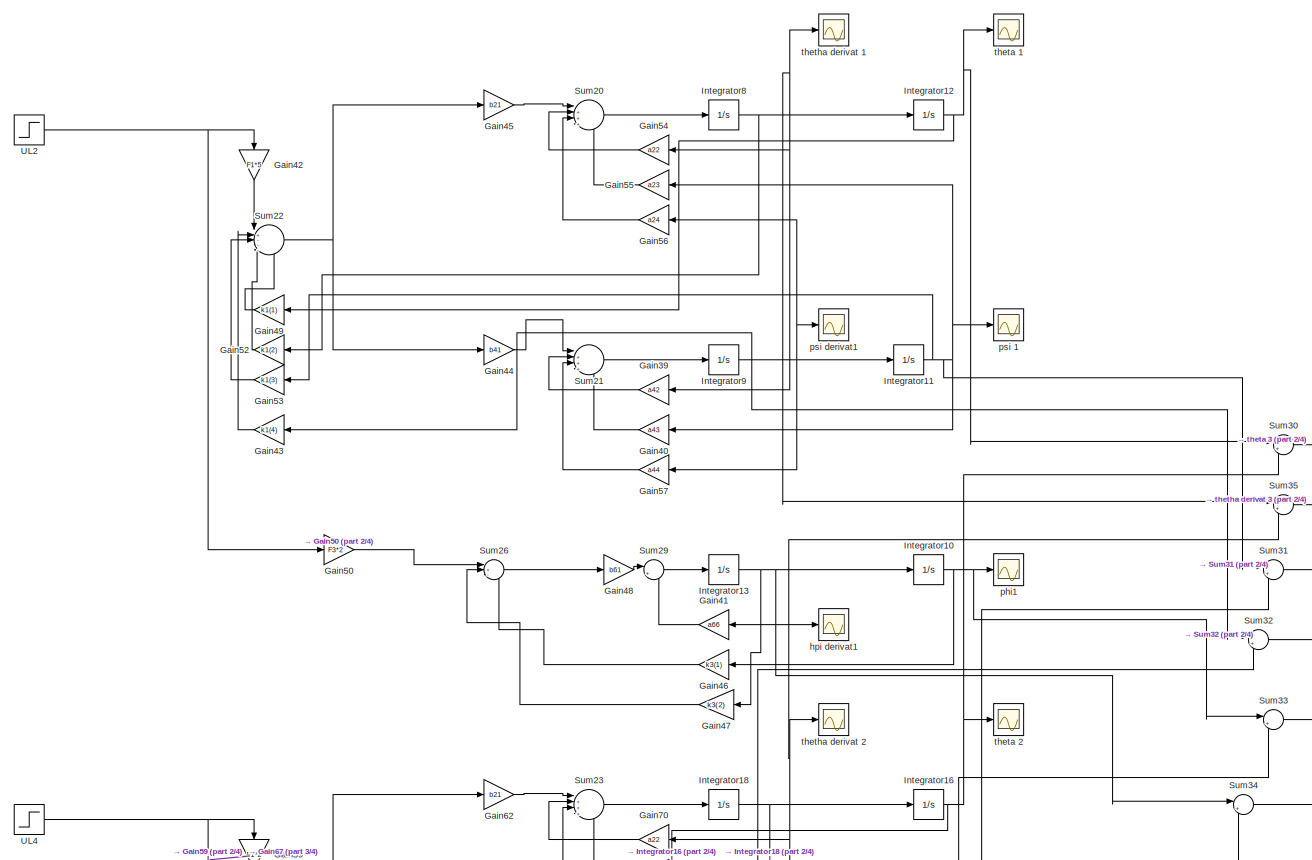
[diagram: root canvas - part 1/4, full width, top band]
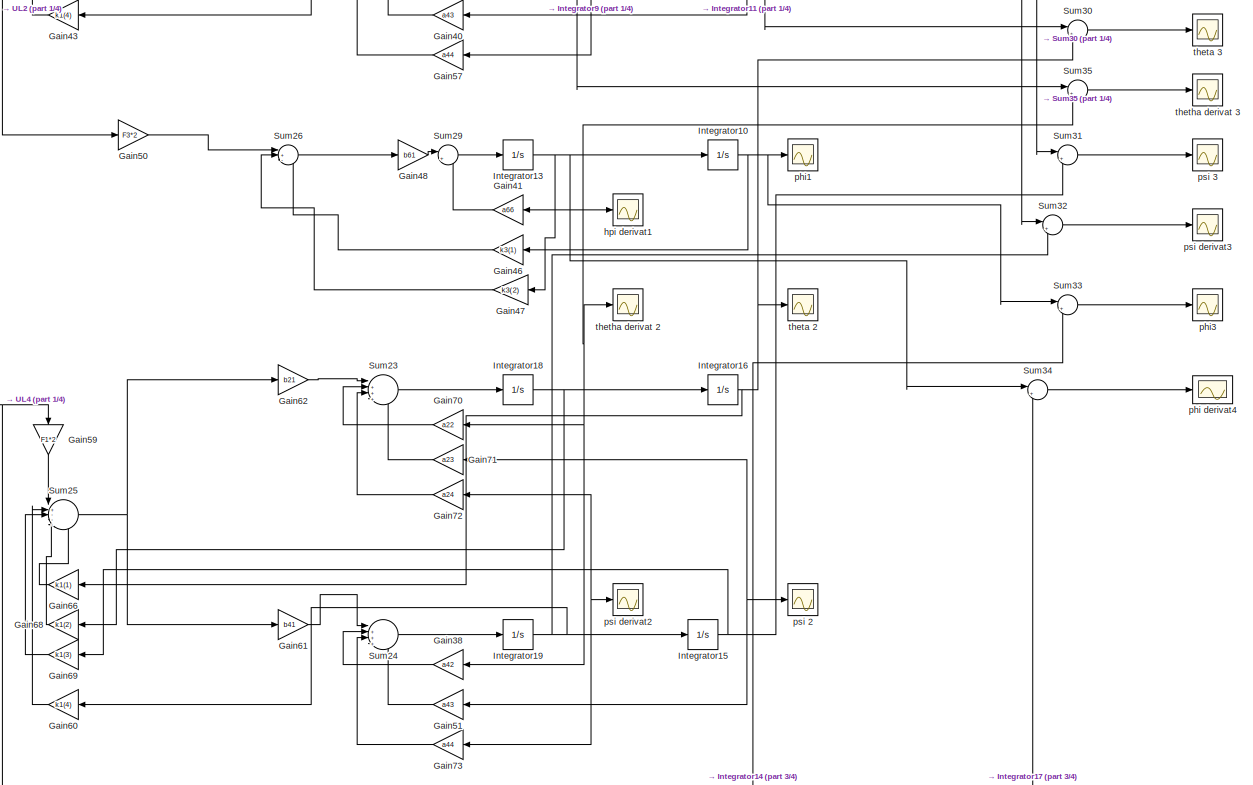
[diagram: root canvas - part 2/4, full width, top band]
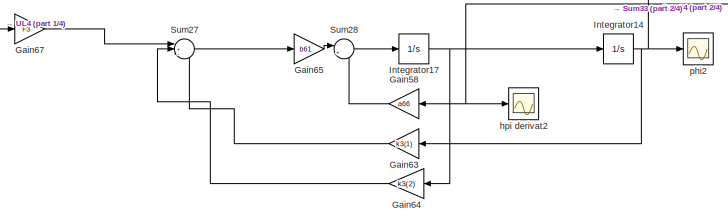
[diagram: root canvas - part 3/4, central region]
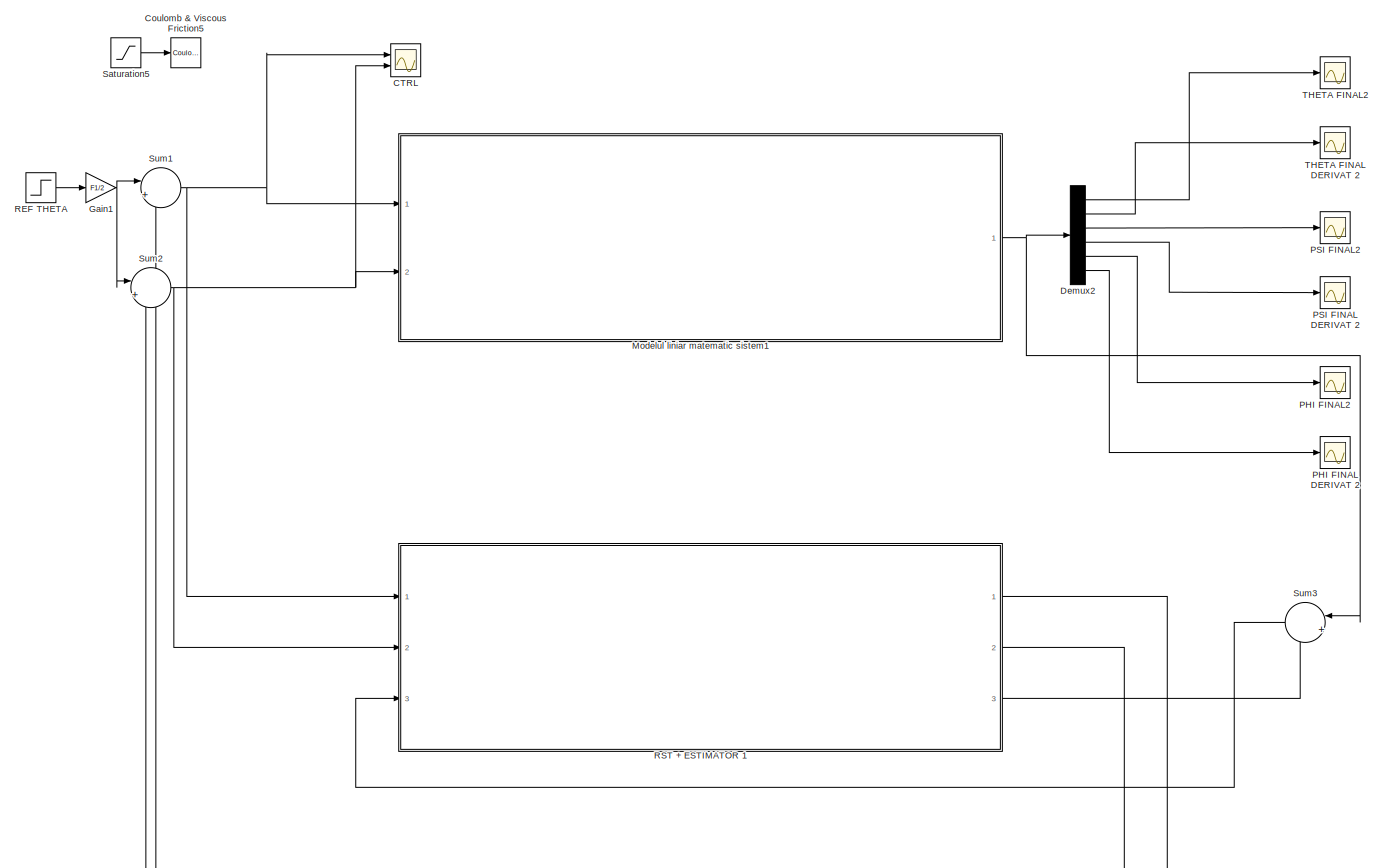
[diagram: root canvas - part 4/4, full width, bottom band]
MODEL slx_9a19c92a1c1b
KIND model
CONFIG AbsTol = auto
CONFIG EnableMultiTasking = off
CONFIG FixedStep = auto
CONFIG MaxStep = auto
CONFIG MinStep = auto
CONFIG RelTol = 1e-3
CONFIG SampleTimeConstraint = Unconstrained
CONFIG Solver = VariableStepAuto
CONFIG SolverName = VariableStepAuto
CONFIG StartTime = 0.0
CONFIG StopTime = 1
BLOCK [Scope] CTRL 
  Floating = off
  NumInputPorts = 2
  Ports = [2]
  ScopeSpecificationString = Simulink.scopes.TimeScopeBlockCfg('CurrentConfiguration', extmgr.ConfigurationSet(extmgr.Configuration('Core','General UI',true),extmgr.Configuration('Core','Source UI',true),extmgr.Configuration('Sources','WiredSimulink',true,'DataLoggingVariableName','ScopeData1'),extmgr.Configuration('Visuals','Time Domain',true,'SerializedDisplays',{struct('MinYLimReal','-127417.39629','MaxYLimReal','32779.278...<+1480ch>
BLOCK [Reference] Coulomb & Viscous Friction5  REF=simulink/Discontinuities/Coulomb &
Viscous Friction
  Ports = [1, 1]
  SourceBlock = simulink/Discontinuities/Coulomb &\nViscous Friction
  SourceProductBaseCode = SL
  SourceProductName = Simulink
  SourceType = Coulombic and Viscous Friction
BLOCK [Demux] Demux2
  DisplayOption = bar
  Outputs = 6
  Ports = [1, 6]
BLOCK [Gain] Gain1
  Gain = F1/2
  OutDataTypeStr = Inherit: Inherit via internal rule
  ParamDataTypeStr = Inherit: Inherit via internal rule
  SaturateOnIntegerOverflow = off
BLOCK [Gain] Gain38
  Gain = a42
  OutDataTypeStr = Inherit: Inherit via internal rule
  ParamDataTypeStr = Inherit: Inherit via internal rule
  SaturateOnIntegerOverflow = off
BLOCK [Gain] Gain39
  Gain = a42
  OutDataTypeStr = Inherit: Inherit via internal rule
  ParamDataTypeStr = Inherit: Inherit via internal rule
  SaturateOnIntegerOverflow = off
BLOCK [Gain] Gain40
  Gain = a43
  OutDataTypeStr = Inherit: Inherit via internal rule
  ParamDataTypeStr = Inherit: Inherit via internal rule
  SaturateOnIntegerOverflow = off
BLOCK [Gain] Gain41
  Gain = a66
  OutDataTypeStr = Inherit: Inherit via internal rule
  ParamDataTypeStr = Inherit: Inherit via internal rule
  SaturateOnIntegerOverflow = off
BLOCK [Gain] Gain42
  Gain = F1*5
  OutDataTypeStr = Inherit: Inherit via internal rule
  ParamDataTypeStr = Inherit: Inherit via internal rule
  SaturateOnIntegerOverflow = off
BLOCK [Gain] Gain43
  Gain = k1(4)
  OutDataTypeStr = Inherit: Inherit via internal rule
  ParamDataTypeStr = Inherit: Inherit via internal rule
  SaturateOnIntegerOverflow = off
BLOCK [Gain] Gain44
  Gain = b41
  OutDataTypeStr = Inherit: Inherit via internal rule
  ParamDataTypeStr = Inherit: Inherit via internal rule
  SaturateOnIntegerOverflow = off
BLOCK [Gain] Gain45
  Gain = b21
  OutDataTypeStr = Inherit: Inherit via internal rule
  ParamDataTypeStr = Inherit: Inherit via internal rule
  SaturateOnIntegerOverflow = off
BLOCK [Gain] Gain46
  Gain = k3(1)
  OutDataTypeStr = Inherit: Inherit via internal rule
  ParamDataTypeStr = Inherit: Inherit via internal rule
  SaturateOnIntegerOverflow = off
BLOCK [Gain] Gain47
  Gain = k3(2)
  OutDataTypeStr = Inherit: Inherit via internal rule
  ParamDataTypeStr = Inherit: Inherit via internal rule
  SaturateOnIntegerOverflow = off
BLOCK [Gain] Gain48
  Gain = b61
  OutDataTypeStr = Inherit: Inherit via internal rule
  ParamDataTypeStr = Inherit: Inherit via internal rule
  SaturateOnIntegerOverflow = off
BLOCK [Gain] Gain49
  Gain = k1(1)
  OutDataTypeStr = Inherit: Inherit via internal rule
  ParamDataTypeStr = Inherit: Inherit via internal rule
  SaturateOnIntegerOverflow = off
BLOCK [Gain] Gain50
  Gain = F3*2
  OutDataTypeStr = Inherit: Inherit via internal rule
  ParamDataTypeStr = Inherit: Inherit via internal rule
  SaturateOnIntegerOverflow = off
BLOCK [Gain] Gain51
  Gain = a43
  OutDataTypeStr = Inherit: Inherit via internal rule
  ParamDataTypeStr = Inherit: Inherit via internal rule
  SaturateOnIntegerOverflow = off
BLOCK [Gain] Gain52
  Gain = k1(2)
  OutDataTypeStr = Inherit: Inherit via internal rule
  ParamDataTypeStr = Inherit: Inherit via internal rule
  SaturateOnIntegerOverflow = off
BLOCK [Gain] Gain53
  Gain = k1(3)
  OutDataTypeStr = Inherit: Inherit via internal rule
  ParamDataTypeStr = Inherit: Inherit via internal rule
  SaturateOnIntegerOverflow = off
BLOCK [Gain] Gain54
  Gain = a22
  OutDataTypeStr = Inherit: Inherit via internal rule
  ParamDataTypeStr = Inherit: Inherit via internal rule
  SaturateOnIntegerOverflow = off
BLOCK [Gain] Gain55
  Gain = a23
  OutDataTypeStr = Inherit: Inherit via internal rule
  ParamDataTypeStr = Inherit: Inherit via internal rule
  SaturateOnIntegerOverflow = off
BLOCK [Gain] Gain56
  Gain = a24
  OutDataTypeStr = Inherit: Inherit via internal rule
  ParamDataTypeStr = Inherit: Inherit via internal rule
  SaturateOnIntegerOverflow = off
BLOCK [Gain] Gain57
  Gain = a44
  OutDataTypeStr = Inherit: Inherit via internal rule
  ParamDataTypeStr = Inherit: Inherit via internal rule
  SaturateOnIntegerOverflow = off
BLOCK [Gain] Gain58
  Gain = a66
  OutDataTypeStr = Inherit: Inherit via internal rule
  ParamDataTypeStr = Inherit: Inherit via internal rule
  SaturateOnIntegerOverflow = off
BLOCK [Gain] Gain59
  Gain = F1*2
  OutDataTypeStr = Inherit: Inherit via internal rule
  ParamDataTypeStr = Inherit: Inherit via internal rule
  SaturateOnIntegerOverflow = off
BLOCK [Gain] Gain60
  Gain = k1(4)
  OutDataTypeStr = Inherit: Inherit via internal rule
  ParamDataTypeStr = Inherit: Inherit via internal rule
  SaturateOnIntegerOverflow = off
BLOCK [Gain] Gain61
  Gain = b41
  OutDataTypeStr = Inherit: Inherit via internal rule
  ParamDataTypeStr = Inherit: Inherit via internal rule
  SaturateOnIntegerOverflow = off
BLOCK [Gain] Gain62
  Gain = b21
  OutDataTypeStr = Inherit: Inherit via internal rule
  ParamDataTypeStr = Inherit: Inherit via internal rule
  SaturateOnIntegerOverflow = off
BLOCK [Gain] Gain63
  Gain = k3(1)
  OutDataTypeStr = Inherit: Inherit via internal rule
  ParamDataTypeStr = Inherit: Inherit via internal rule
  SaturateOnIntegerOverflow = off
BLOCK [Gain] Gain64
  Gain = k3(2)
  OutDataTypeStr = Inherit: Inherit via internal rule
  ParamDataTypeStr = Inherit: Inherit via internal rule
  SaturateOnIntegerOverflow = off
BLOCK [Gain] Gain65
  Gain = b61
  OutDataTypeStr = Inherit: Inherit via internal rule
  ParamDataTypeStr = Inherit: Inherit via internal rule
  SaturateOnIntegerOverflow = off
BLOCK [Gain] Gain66
  Gain = k1(1)
  OutDataTypeStr = Inherit: Inherit via internal rule
  ParamDataTypeStr = Inherit: Inherit via internal rule
  SaturateOnIntegerOverflow = off
BLOCK [Gain] Gain67
  Gain = F3
  OutDataTypeStr = Inherit: Inherit via internal rule
  ParamDataTypeStr = Inherit: Inherit via internal rule
  SaturateOnIntegerOverflow = off
BLOCK [Gain] Gain68
  Gain = k1(2)
  OutDataTypeStr = Inherit: Inherit via internal rule
  ParamDataTypeStr = Inherit: Inherit via internal rule
  SaturateOnIntegerOverflow = off
BLOCK [Gain] Gain69
  Gain = k1(3)
  OutDataTypeStr = Inherit: Inherit via internal rule
  ParamDataTypeStr = Inherit: Inherit via internal rule
  SaturateOnIntegerOverflow = off
BLOCK [Gain] Gain70
  Gain = a22
  OutDataTypeStr = Inherit: Inherit via internal rule
  ParamDataTypeStr = Inherit: Inherit via internal rule
  SaturateOnIntegerOverflow = off
BLOCK [Gain] Gain71
  Gain = a23
  OutDataTypeStr = Inherit: Inherit via internal rule
  ParamDataTypeStr = Inherit: Inherit via internal rule
  SaturateOnIntegerOverflow = off
BLOCK [Gain] Gain72
  Gain = a24
  OutDataTypeStr = Inherit: Inherit via internal rule
  ParamDataTypeStr = Inherit: Inherit via internal rule
  SaturateOnIntegerOverflow = off
BLOCK [Gain] Gain73
  Gain = a44
  OutDataTypeStr = Inherit: Inherit via internal rule
  ParamDataTypeStr = Inherit: Inherit via internal rule
  SaturateOnIntegerOverflow = off
BLOCK [Integrator] Integrator10
  Ports = [1, 1]
BLOCK [Integrator] Integrator11
  Ports = [1, 1]
BLOCK [Integrator] Integrator12
  Ports = [1, 1]
BLOCK [Integrator] Integrator13
  Ports = [1, 1]
BLOCK [Integrator] Integrator14
  Ports = [1, 1]
BLOCK [Integrator] Integrator15
  Ports = [1, 1]
BLOCK [Integrator] Integrator16
  Ports = [1, 1]
BLOCK [Integrator] Integrator17
  Ports = [1, 1]
BLOCK [Integrator] Integrator18
  Ports = [1, 1]
BLOCK [Integrator] Integrator19
  Ports = [1, 1]
BLOCK [Integrator] Integrator8
  Ports = [1, 1]
BLOCK [Integrator] Integrator9
  Ports = [1, 1]
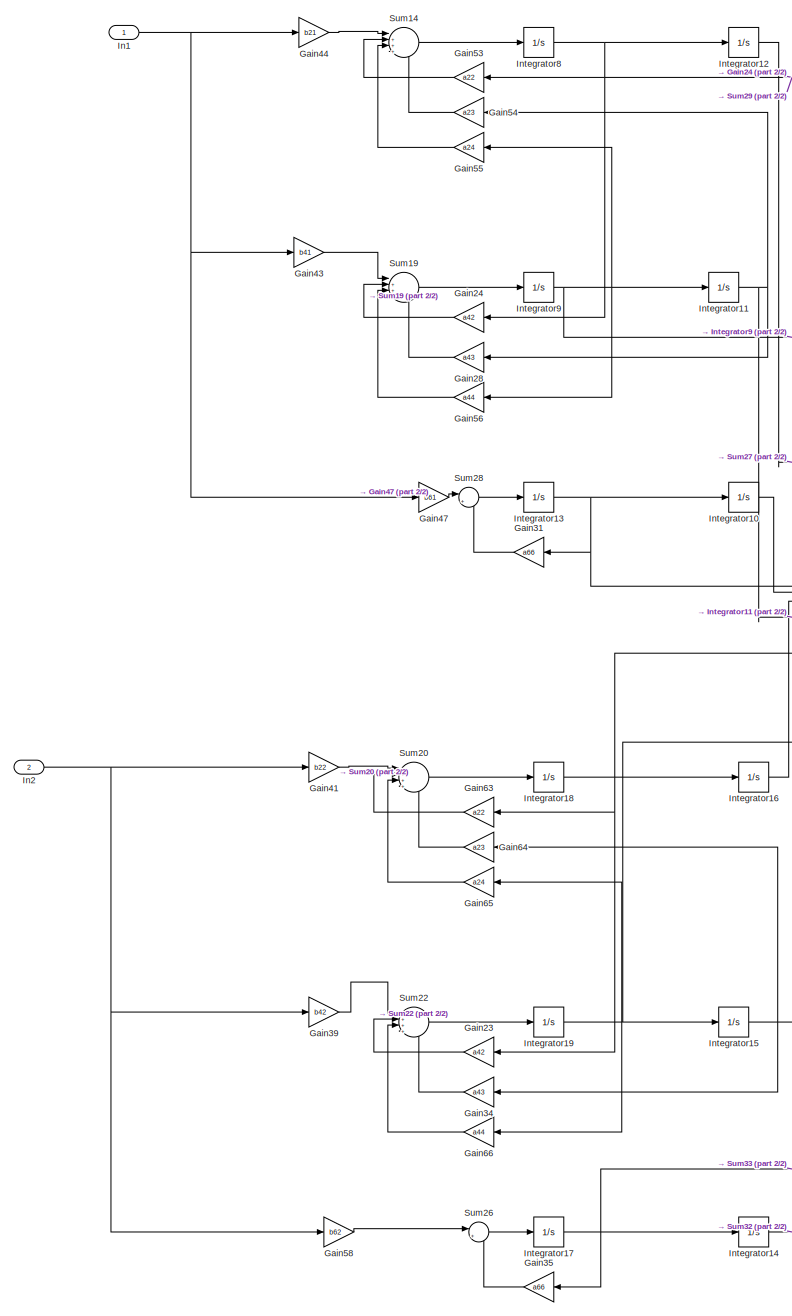
[diagram: Modelul liniar matematic sistem1 - part 1/2, left side, full height]
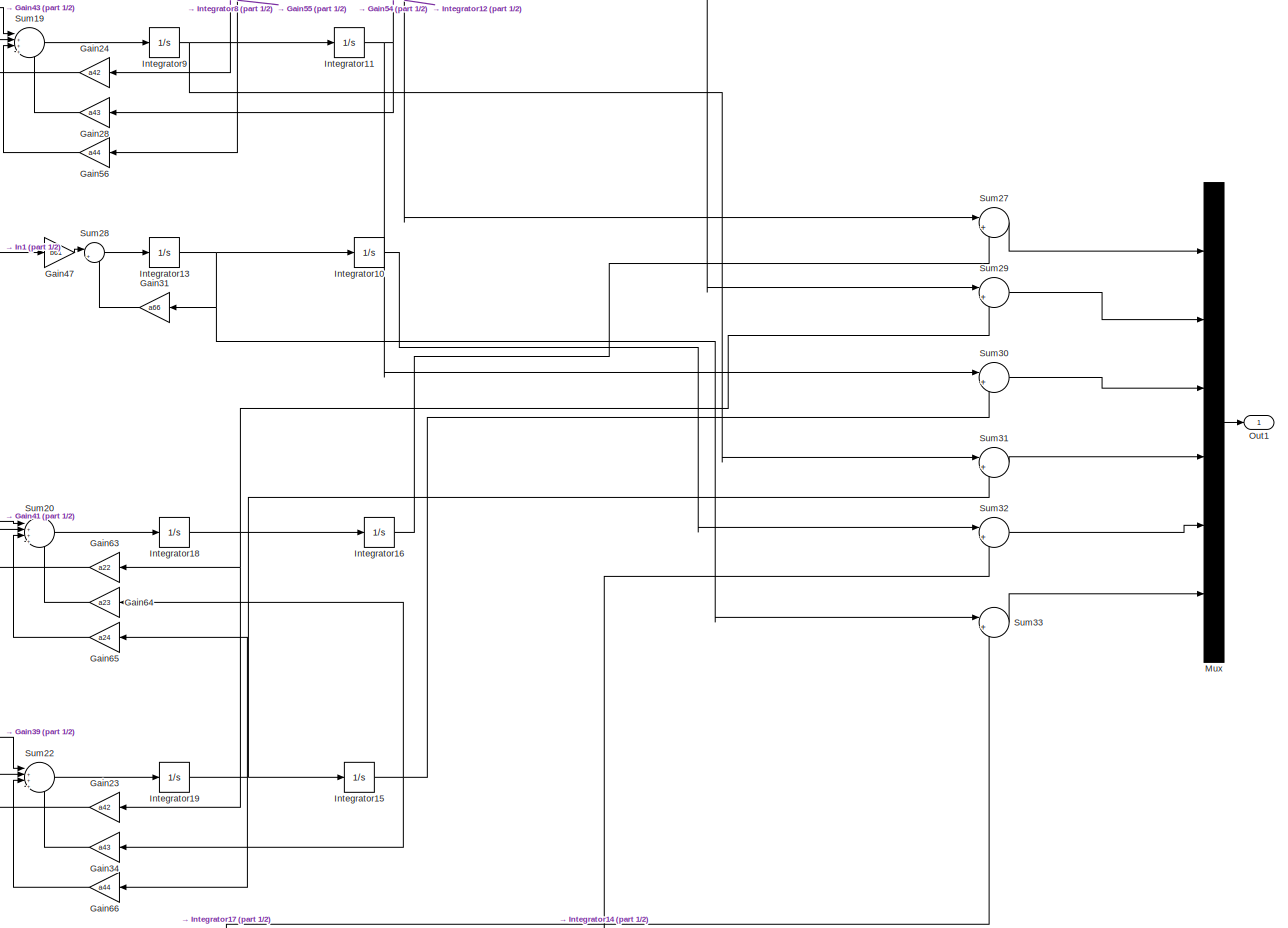
[diagram: Modelul liniar matematic sistem1 - part 2/2, full width, middle band]
BLOCK [SubSystem] Modelul liniar matematic sistem1
  Ports = [2, 1]
  RequestExecContextInheritance = off
BLOCK [Gain] Modelul liniar matematic sistem1/Gain23
  Gain = a42
  OutDataTypeStr = Inherit: Inherit via internal rule
  ParamDataTypeStr = Inherit: Inherit via internal rule
  SaturateOnIntegerOverflow = off
BLOCK [Gain] Modelul liniar matematic sistem1/Gain24
  Gain = a42
  OutDataTypeStr = Inherit: Inherit via internal rule
  ParamDataTypeStr = Inherit: Inherit via internal rule
  SaturateOnIntegerOverflow = off
BLOCK [Gain] Modelul liniar matematic sistem1/Gain28
  Gain = a43
  OutDataTypeStr = Inherit: Inherit via internal rule
  ParamDataTypeStr = Inherit: Inherit via internal rule
  SaturateOnIntegerOverflow = off
BLOCK [Gain] Modelul liniar matematic sistem1/Gain31
  Gain = a66
  OutDataTypeStr = Inherit: Inherit via internal rule
  ParamDataTypeStr = Inherit: Inherit via internal rule
  SaturateOnIntegerOverflow = off
BLOCK [Gain] Modelul liniar matematic sistem1/Gain34
  Gain = a43
  OutDataTypeStr = Inherit: Inherit via internal rule
  ParamDataTypeStr = Inherit: Inherit via internal rule
  SaturateOnIntegerOverflow = off
BLOCK [Gain] Modelul liniar matematic sistem1/Gain35
  Gain = a66
  OutDataTypeStr = Inherit: Inherit via internal rule
  ParamDataTypeStr = Inherit: Inherit via internal rule
  SaturateOnIntegerOverflow = off
BLOCK [Gain] Modelul liniar matematic sistem1/Gain39
  Gain = b42
  OutDataTypeStr = Inherit: Inherit via internal rule
  ParamDataTypeStr = Inherit: Inherit via internal rule
  SaturateOnIntegerOverflow = off
BLOCK [Gain] Modelul liniar matematic sistem1/Gain41
  Gain = b22
  OutDataTypeStr = Inherit: Inherit via internal rule
  ParamDataTypeStr = Inherit: Inherit via internal rule
  SaturateOnIntegerOverflow = off
BLOCK [Gain] Modelul liniar matematic sistem1/Gain43
  Gain = b41
  OutDataTypeStr = Inherit: Inherit via internal rule
  ParamDataTypeStr = Inherit: Inherit via internal rule
  SaturateOnIntegerOverflow = off
BLOCK [Gain] Modelul liniar matematic sistem1/Gain44
  Gain = b21
  OutDataTypeStr = Inherit: Inherit via internal rule
  ParamDataTypeStr = Inherit: Inherit via internal rule
  SaturateOnIntegerOverflow = off
BLOCK [Gain] Modelul liniar matematic sistem1/Gain47
  Gain = b61
  OutDataTypeStr = Inherit: Inherit via internal rule
  ParamDataTypeStr = Inherit: Inherit via internal rule
  SaturateOnIntegerOverflow = off
BLOCK [Gain] Modelul liniar matematic sistem1/Gain53
  Gain = a22
  OutDataTypeStr = Inherit: Inherit via internal rule
  ParamDataTypeStr = Inherit: Inherit via internal rule
  SaturateOnIntegerOverflow = off
BLOCK [Gain] Modelul liniar matematic sistem1/Gain54
  Gain = a23
  OutDataTypeStr = Inherit: Inherit via internal rule
  ParamDataTypeStr = Inherit: Inherit via internal rule
  SaturateOnIntegerOverflow = off
BLOCK [Gain] Modelul liniar matematic sistem1/Gain55
  Gain = a24
  OutDataTypeStr = Inherit: Inherit via internal rule
  ParamDataTypeStr = Inherit: Inherit via internal rule
  SaturateOnIntegerOverflow = off
BLOCK [Gain] Modelul liniar matematic sistem1/Gain56
  Gain = a44
  OutDataTypeStr = Inherit: Inherit via internal rule
  ParamDataTypeStr = Inherit: Inherit via internal rule
  SaturateOnIntegerOverflow = off
BLOCK [Gain] Modelul liniar matematic sistem1/Gain58
  Gain = b62
  OutDataTypeStr = Inherit: Inherit via internal rule
  ParamDataTypeStr = Inherit: Inherit via internal rule
  SaturateOnIntegerOverflow = off
BLOCK [Gain] Modelul liniar matematic sistem1/Gain63
  Gain = a22
  OutDataTypeStr = Inherit: Inherit via internal rule
  ParamDataTypeStr = Inherit: Inherit via internal rule
  SaturateOnIntegerOverflow = off
BLOCK [Gain] Modelul liniar matematic sistem1/Gain64
  Gain = a23
  OutDataTypeStr = Inherit: Inherit via internal rule
  ParamDataTypeStr = Inherit: Inherit via internal rule
  SaturateOnIntegerOverflow = off
BLOCK [Gain] Modelul liniar matematic sistem1/Gain65
  Gain = a24
  OutDataTypeStr = Inherit: Inherit via internal rule
  ParamDataTypeStr = Inherit: Inherit via internal rule
  SaturateOnIntegerOverflow = off
BLOCK [Gain] Modelul liniar matematic sistem1/Gain66
  Gain = a44
  OutDataTypeStr = Inherit: Inherit via internal rule
  ParamDataTypeStr = Inherit: Inherit via internal rule
  SaturateOnIntegerOverflow = off
BLOCK [Inport] Modelul liniar matematic sistem1/In1
  IconDisplay = Port number
BLOCK [Inport] Modelul liniar matematic sistem1/In2
  IconDisplay = Port number
  Port = 2
BLOCK [Integrator] Modelul liniar matematic sistem1/Integrator10
  Ports = [1, 1]
BLOCK [Integrator] Modelul liniar matematic sistem1/Integrator11
  Ports = [1, 1]
BLOCK [Integrator] Modelul liniar matematic sistem1/Integrator12
  Ports = [1, 1]
BLOCK [Integrator] Modelul liniar matematic sistem1/Integrator13
  Ports = [1, 1]
BLOCK [Integrator] Modelul liniar matematic sistem1/Integrator14
  Ports = [1, 1]
BLOCK [Integrator] Modelul liniar matematic sistem1/Integrator15
  Ports = [1, 1]
BLOCK [Integrator] Modelul liniar matematic sistem1/Integrator16
  Ports = [1, 1]
BLOCK [Integrator] Modelul liniar matematic sistem1/Integrator17
  Ports = [1, 1]
BLOCK [Integrator] Modelul liniar matematic sistem1/Integrator18
  Ports = [1, 1]
BLOCK [Integrator] Modelul liniar matematic sistem1/Integrator19
  Ports = [1, 1]
BLOCK [Integrator] Modelul liniar matematic sistem1/Integrator8
  Ports = [1, 1]
BLOCK [Integrator] Modelul liniar matematic sistem1/Integrator9
  Ports = [1, 1]
BLOCK [Mux] Modelul liniar matematic sistem1/Mux
  DisplayOption = bar
  Inputs = 6
  Ports = [6, 1]
BLOCK [Outport] Modelul liniar matematic sistem1/Out1
  IconDisplay = Port number
BLOCK [Sum] Modelul liniar matematic sistem1/Sum14
  IconShape = round
  InputSameDT = off
  Inputs = |++++
  OutDataTypeStr = Inherit: Inherit via internal rule
  Ports = [4, 1]
  SaturateOnIntegerOverflow = off
BLOCK [Sum] Modelul liniar matematic sistem1/Sum19
  IconShape = round
  InputSameDT = off
  Inputs = |++++
  OutDataTypeStr = Inherit: Inherit via internal rule
  Ports = [4, 1]
  SaturateOnIntegerOverflow = off
BLOCK [Sum] Modelul liniar matematic sistem1/Sum20
  IconShape = round
  InputSameDT = off
  Inputs = |++++
  OutDataTypeStr = Inherit: Inherit via internal rule
  Ports = [4, 1]
  SaturateOnIntegerOverflow = off
BLOCK [Sum] Modelul liniar matematic sistem1/Sum22
  IconShape = round
  InputSameDT = off
  Inputs = |++++
  OutDataTypeStr = Inherit: Inherit via internal rule
  Ports = [4, 1]
  SaturateOnIntegerOverflow = off
BLOCK [Sum] Modelul liniar matematic sistem1/Sum26
  IconShape = round
  InputSameDT = off
  Inputs = |++
  OutDataTypeStr = Inherit: Inherit via internal rule
  Ports = [2, 1]
  SaturateOnIntegerOverflow = off
BLOCK [Sum] Modelul liniar matematic sistem1/Sum27
  IconShape = round
  InputSameDT = off
  Inputs = |++
  OutDataTypeStr = Inherit: Inherit via internal rule
  Ports = [2, 1]
  SaturateOnIntegerOverflow = off
BLOCK [Sum] Modelul liniar matematic sistem1/Sum28
  IconShape = round
  InputSameDT = off
  Inputs = |++
  OutDataTypeStr = Inherit: Inherit via internal rule
  Ports = [2, 1]
  SaturateOnIntegerOverflow = off
BLOCK [Sum] Modelul liniar matematic sistem1/Sum29
  IconShape = round
  InputSameDT = off
  Inputs = |++
  OutDataTypeStr = Inherit: Inherit via internal rule
  Ports = [2, 1]
  SaturateOnIntegerOverflow = off
BLOCK [Sum] Modelul liniar matematic sistem1/Sum30
  IconShape = round
  InputSameDT = off
  Inputs = |++
  OutDataTypeStr = Inherit: Inherit via internal rule
  Ports = [2, 1]
  SaturateOnIntegerOverflow = off
BLOCK [Sum] Modelul liniar matematic sistem1/Sum31
  IconShape = round
  InputSameDT = off
  Inputs = |++
  OutDataTypeStr = Inherit: Inherit via internal rule
  Ports = [2, 1]
  SaturateOnIntegerOverflow = off
BLOCK [Sum] Modelul liniar matematic sistem1/Sum32
  IconShape = round
  InputSameDT = off
  Inputs = |++
  OutDataTypeStr = Inherit: Inherit via internal rule
  Ports = [2, 1]
  SaturateOnIntegerOverflow = off
BLOCK [Sum] Modelul liniar matematic sistem1/Sum33
  IconShape = round
  InputSameDT = off
  Inputs = |++
  OutDataTypeStr = Inherit: Inherit via internal rule
  Ports = [2, 1]
  SaturateOnIntegerOverflow = off
BLOCK [Scope] PHI FINAL DERIVAT 2
  Floating = off
  NumInputPorts = 1
  Ports = [1]
  ScopeSpecificationString = Simulink.scopes.TimeScopeBlockCfg('CurrentConfiguration', extmgr.ConfigurationSet(extmgr.Configuration('Core','General UI',true),extmgr.Configuration('Core','Source UI',true),extmgr.Configuration('Sources','WiredSimulink',true,'DataLoggingVariableName','ScopeData4'),extmgr.Configuration('Visuals','Time Domain',true,'SerializedDisplays',{struct('MinYLimReal','-2.33939','MaxYLimReal','0.93083','YLab...<+1386ch>
BLOCK [Scope] PHI FINAL2
  Floating = off
  NumInputPorts = 1
  Ports = [1]
  ScopeSpecificationString = Simulink.scopes.TimeScopeBlockCfg('CurrentConfiguration', extmgr.ConfigurationSet(extmgr.Configuration('Core','General UI',true),extmgr.Configuration('Core','Source UI',true),extmgr.Configuration('Sources','WiredSimulink',true,'DataLoggingVariableName','ScopeData5'),extmgr.Configuration('Visuals','Time Domain',true,'SerializedDisplays',{struct('MinYLimReal','-5.25141','MaxYLimReal','8.05115','YLab...<+1416ch>
BLOCK [Scope] PSI FINAL DERIVAT 2
  Floating = off
  NumInputPorts = 1
  Ports = [1]
  ScopeSpecificationString = Simulink.scopes.TimeScopeBlockCfg('CurrentConfiguration', extmgr.ConfigurationSet(extmgr.Configuration('Core','General UI',true),extmgr.Configuration('Core','Source UI',true),extmgr.Configuration('Sources','WiredSimulink',true,'DataLoggingVariableName','ScopeData6'),extmgr.Configuration('Visuals','Time Domain',true,'SerializedDisplays',{struct('MinYLimReal','-48.87518','MaxYLimReal','76.71803','YL...<+1446ch>
BLOCK [Scope] PSI FINAL2
  Floating = off
  NumInputPorts = 1
  Ports = [1]
  ScopeSpecificationString = Simulink.scopes.TimeScopeBlockCfg('CurrentConfiguration', extmgr.ConfigurationSet(extmgr.Configuration('Core','General UI',true),extmgr.Configuration('Core','Source UI',true),extmgr.Configuration('Sources','WiredSimulink',true,'DataLoggingVariableName','ScopeData16'),extmgr.Configuration('Visuals','Time Domain',true,'SerializedDisplays',{struct('MinYLimReal','-2.62104','MaxYLimReal','4.34532','YLa...<+1442ch>
BLOCK [Step] REF THETA 
  SampleTime = 0
  Time = 0
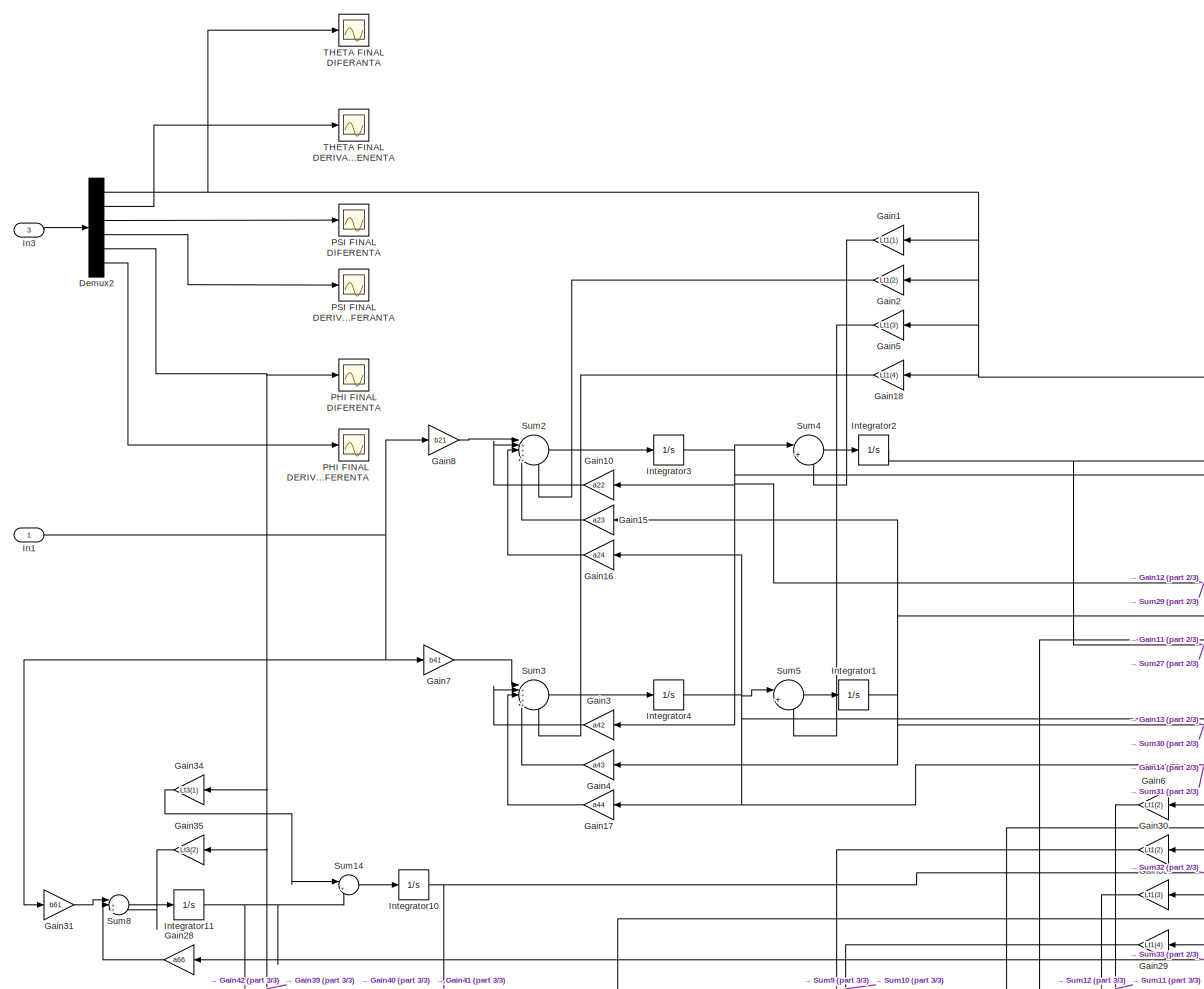
[diagram: RST + ESTIMATOR 1 - part 1/3, top left region]
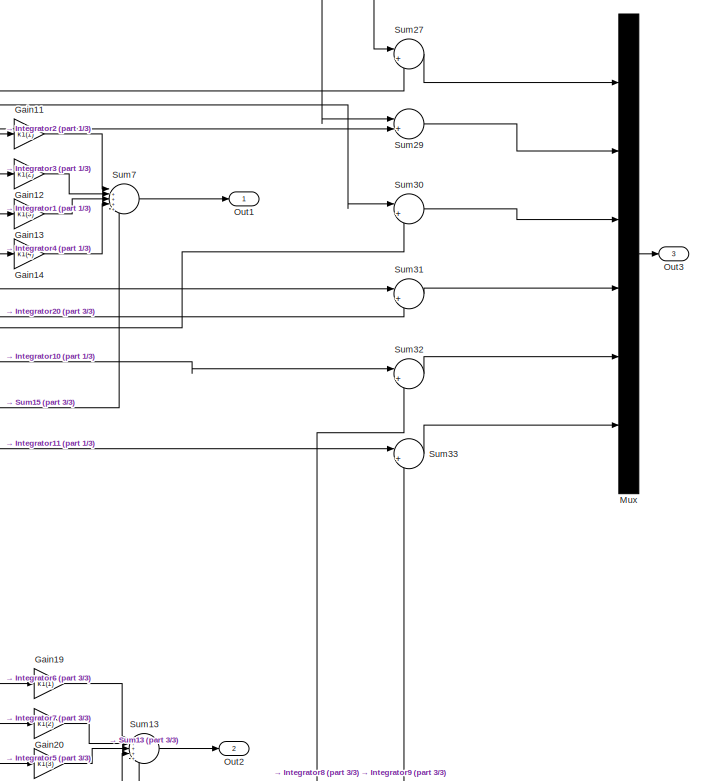
[diagram: RST + ESTIMATOR 1 - part 2/3, middle right region]
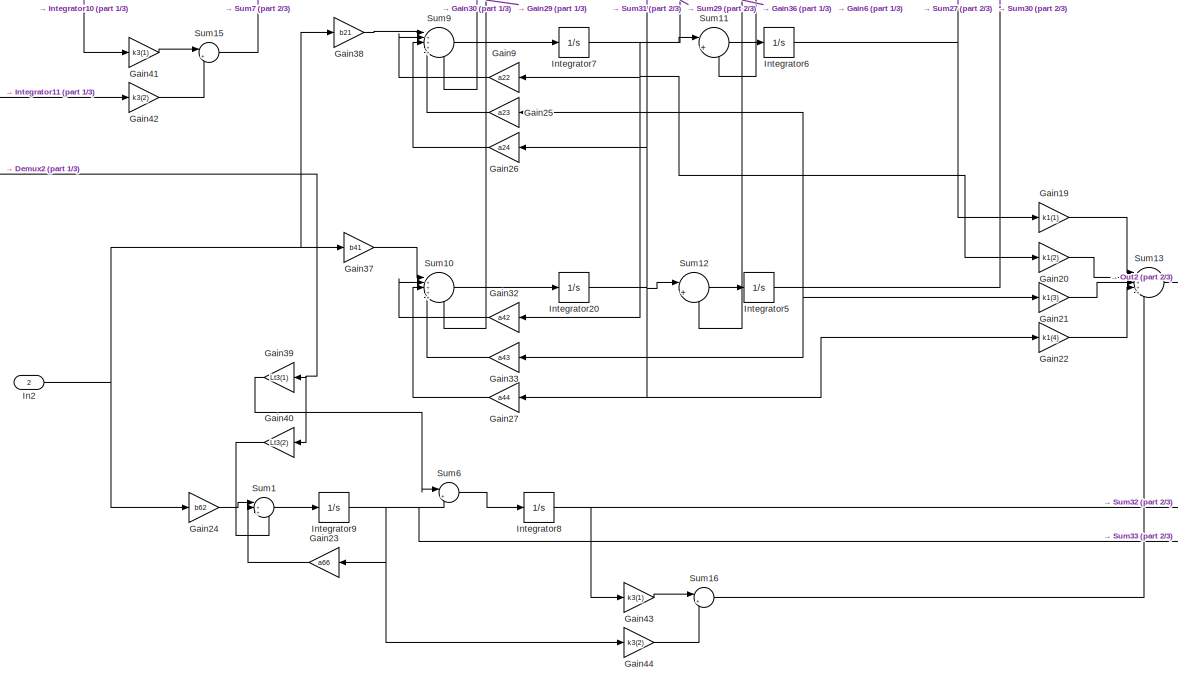
[diagram: RST + ESTIMATOR 1 - part 3/3, bottom center region]
BLOCK [SubSystem] RST + ESTIMATOR 1
  Ports = [3, 3]
  RequestExecContextInheritance = off
BLOCK [Demux] RST + ESTIMATOR 1/Demux2
  DisplayOption = bar
  Outputs = 6
  Ports = [1, 6]
BLOCK [Gain] RST + ESTIMATOR 1/Gain1
  Gain = Lt1(1)
  OutDataTypeStr = Inherit: Inherit via internal rule
  ParamDataTypeStr = Inherit: Inherit via internal rule
  SaturateOnIntegerOverflow = off
BLOCK [Gain] RST + ESTIMATOR 1/Gain10
  Gain = a22
  OutDataTypeStr = Inherit: Inherit via internal rule
  ParamDataTypeStr = Inherit: Inherit via internal rule
  SaturateOnIntegerOverflow = off
BLOCK [Gain] RST + ESTIMATOR 1/Gain11
  Gain = k1(1)
  OutDataTypeStr = Inherit: Inherit via internal rule
  ParamDataTypeStr = Inherit: Inherit via internal rule
  SaturateOnIntegerOverflow = off
BLOCK [Gain] RST + ESTIMATOR 1/Gain12
  Gain = k1(2)
  OutDataTypeStr = Inherit: Inherit via internal rule
  ParamDataTypeStr = Inherit: Inherit via internal rule
  SaturateOnIntegerOverflow = off
BLOCK [Gain] RST + ESTIMATOR 1/Gain13
  Gain = k1(3)
  OutDataTypeStr = Inherit: Inherit via internal rule
  ParamDataTypeStr = Inherit: Inherit via internal rule
  SaturateOnIntegerOverflow = off
BLOCK [Gain] RST + ESTIMATOR 1/Gain14
  Gain = k1(4)
  OutDataTypeStr = Inherit: Inherit via internal rule
  ParamDataTypeStr = Inherit: Inherit via internal rule
  SaturateOnIntegerOverflow = off
BLOCK [Gain] RST + ESTIMATOR 1/Gain15
  Gain = a23
  OutDataTypeStr = Inherit: Inherit via internal rule
  ParamDataTypeStr = Inherit: Inherit via internal rule
  SaturateOnIntegerOverflow = off
BLOCK [Gain] RST + ESTIMATOR 1/Gain16
  Gain = a24
  OutDataTypeStr = Inherit: Inherit via internal rule
  ParamDataTypeStr = Inherit: Inherit via internal rule
  SaturateOnIntegerOverflow = off
BLOCK [Gain] RST + ESTIMATOR 1/Gain17
  Gain = a44
  OutDataTypeStr = Inherit: Inherit via internal rule
  ParamDataTypeStr = Inherit: Inherit via internal rule
  SaturateOnIntegerOverflow = off
BLOCK [Gain] RST + ESTIMATOR 1/Gain18
  Gain = Lt1(4)
  OutDataTypeStr = Inherit: Inherit via internal rule
  ParamDataTypeStr = Inherit: Inherit via internal rule
  SaturateOnIntegerOverflow = off
BLOCK [Gain] RST + ESTIMATOR 1/Gain19
  Gain = k1(1)
  OutDataTypeStr = Inherit: Inherit via internal rule
  ParamDataTypeStr = Inherit: Inherit via internal rule
  SaturateOnIntegerOverflow = off
BLOCK [Gain] RST + ESTIMATOR 1/Gain2
  Gain = Lt1(2)
  OutDataTypeStr = Inherit: Inherit via internal rule
  ParamDataTypeStr = Inherit: Inherit via internal rule
  SaturateOnIntegerOverflow = off
BLOCK [Gain] RST + ESTIMATOR 1/Gain20
  Gain = k1(2)
  OutDataTypeStr = Inherit: Inherit via internal rule
  ParamDataTypeStr = Inherit: Inherit via internal rule
  SaturateOnIntegerOverflow = off
BLOCK [Gain] RST + ESTIMATOR 1/Gain21
  Gain = k1(3)
  OutDataTypeStr = Inherit: Inherit via internal rule
  ParamDataTypeStr = Inherit: Inherit via internal rule
  SaturateOnIntegerOverflow = off
BLOCK [Gain] RST + ESTIMATOR 1/Gain22
  Gain = k1(4)
  OutDataTypeStr = Inherit: Inherit via internal rule
  ParamDataTypeStr = Inherit: Inherit via internal rule
  SaturateOnIntegerOverflow = off
BLOCK [Gain] RST + ESTIMATOR 1/Gain23
  Gain = a66
  OutDataTypeStr = Inherit: Inherit via internal rule
  ParamDataTypeStr = Inherit: Inherit via internal rule
  SaturateOnIntegerOverflow = off
BLOCK [Gain] RST + ESTIMATOR 1/Gain24
  Gain = b62
  OutDataTypeStr = Inherit: Inherit via internal rule
  ParamDataTypeStr = Inherit: Inherit via internal rule
  SaturateOnIntegerOverflow = off
BLOCK [Gain] RST + ESTIMATOR 1/Gain25
  Gain = a23
  OutDataTypeStr = Inherit: Inherit via internal rule
  ParamDataTypeStr = Inherit: Inherit via internal rule
  SaturateOnIntegerOverflow = off
BLOCK [Gain] RST + ESTIMATOR 1/Gain26
  Gain = a24
  OutDataTypeStr = Inherit: Inherit via internal rule
  ParamDataTypeStr = Inherit: Inherit via internal rule
  SaturateOnIntegerOverflow = off
BLOCK [Gain] RST + ESTIMATOR 1/Gain27
  Gain = a44
  OutDataTypeStr = Inherit: Inherit via internal rule
  ParamDataTypeStr = Inherit: Inherit via internal rule
  SaturateOnIntegerOverflow = off
BLOCK [Gain] RST + ESTIMATOR 1/Gain28
  Gain = a66
  OutDataTypeStr = Inherit: Inherit via internal rule
  ParamDataTypeStr = Inherit: Inherit via internal rule
  SaturateOnIntegerOverflow = off
BLOCK [Gain] RST + ESTIMATOR 1/Gain29
  Gain = Lt1(4)
  OutDataTypeStr = Inherit: Inherit via internal rule
  ParamDataTypeStr = Inherit: Inherit via internal rule
  SaturateOnIntegerOverflow = off
BLOCK [Gain] RST + ESTIMATOR 1/Gain3
  Gain = a42
  OutDataTypeStr = Inherit: Inherit via internal rule
  ParamDataTypeStr = Inherit: Inherit via internal rule
  SaturateOnIntegerOverflow = off
BLOCK [Gain] RST + ESTIMATOR 1/Gain30
  Gain = Lt1(2)
  OutDataTypeStr = Inherit: Inherit via internal rule
  ParamDataTypeStr = Inherit: Inherit via internal rule
  SaturateOnIntegerOverflow = off
BLOCK [Gain] RST + ESTIMATOR 1/Gain31
  Gain = b61
  OutDataTypeStr = Inherit: Inherit via internal rule
  ParamDataTypeStr = Inherit: Inherit via internal rule
  SaturateOnIntegerOverflow = off
BLOCK [Gain] RST + ESTIMATOR 1/Gain32
  Gain = a42
  OutDataTypeStr = Inherit: Inherit via internal rule
  ParamDataTypeStr = Inherit: Inherit via internal rule
  SaturateOnIntegerOverflow = off
BLOCK [Gain] RST + ESTIMATOR 1/Gain33
  Gain = a43
  OutDataTypeStr = Inherit: Inherit via internal rule
  ParamDataTypeStr = Inherit: Inherit via internal rule
  SaturateOnIntegerOverflow = off
BLOCK [Gain] RST + ESTIMATOR 1/Gain34
  Gain = Lt3(1)
  OutDataTypeStr = Inherit: Inherit via internal rule
  ParamDataTypeStr = Inherit: Inherit via internal rule
  SaturateOnIntegerOverflow = off
BLOCK [Gain] RST + ESTIMATOR 1/Gain35
  Gain = Lt3(2)
  OutDataTypeStr = Inherit: Inherit via internal rule
  ParamDataTypeStr = Inherit: Inherit via internal rule
  SaturateOnIntegerOverflow = off
BLOCK [Gain] RST + ESTIMATOR 1/Gain36
  Gain = Lt1(3)
  OutDataTypeStr = Inherit: Inherit via internal rule
  ParamDataTypeStr = Inherit: Inherit via internal rule
  SaturateOnIntegerOverflow = off
BLOCK [Gain] RST + ESTIMATOR 1/Gain37
  Gain = b41
  OutDataTypeStr = Inherit: Inherit via internal rule
  ParamDataTypeStr = Inherit: Inherit via internal rule
  SaturateOnIntegerOverflow = off
BLOCK [Gain] RST + ESTIMATOR 1/Gain38
  Gain = b21
  OutDataTypeStr = Inherit: Inherit via internal rule
  ParamDataTypeStr = Inherit: Inherit via internal rule
  SaturateOnIntegerOverflow = off
BLOCK [Gain] RST + ESTIMATOR 1/Gain39
  Gain = Lt3(1)
  OutDataTypeStr = Inherit: Inherit via internal rule
  ParamDataTypeStr = Inherit: Inherit via internal rule
  SaturateOnIntegerOverflow = off
BLOCK [Gain] RST + ESTIMATOR 1/Gain4
  Gain = a43
  OutDataTypeStr = Inherit: Inherit via internal rule
  ParamDataTypeStr = Inherit: Inherit via internal rule
  SaturateOnIntegerOverflow = off
BLOCK [Gain] RST + ESTIMATOR 1/Gain40
  Gain = Lt3(2)
  OutDataTypeStr = Inherit: Inherit via internal rule
  ParamDataTypeStr = Inherit: Inherit via internal rule
  SaturateOnIntegerOverflow = off
BLOCK [Gain] RST + ESTIMATOR 1/Gain41
  Gain = k3(1)
  OutDataTypeStr = Inherit: Inherit via internal rule
  ParamDataTypeStr = Inherit: Inherit via internal rule
  SaturateOnIntegerOverflow = off
BLOCK [Gain] RST + ESTIMATOR 1/Gain42
  Gain = k3(2)
  OutDataTypeStr = Inherit: Inherit via internal rule
  ParamDataTypeStr = Inherit: Inherit via internal rule
  SaturateOnIntegerOverflow = off
BLOCK [Gain] RST + ESTIMATOR 1/Gain43
  Gain = k3(1)
  OutDataTypeStr = Inherit: Inherit via internal rule
  ParamDataTypeStr = Inherit: Inherit via internal rule
  SaturateOnIntegerOverflow = off
BLOCK [Gain] RST + ESTIMATOR 1/Gain44
  Gain = k3(2)
  OutDataTypeStr = Inherit: Inherit via internal rule
  ParamDataTypeStr = Inherit: Inherit via internal rule
  SaturateOnIntegerOverflow = off
BLOCK [Gain] RST + ESTIMATOR 1/Gain5
  Gain = Lt1(3)
  OutDataTypeStr = Inherit: Inherit via internal rule
  ParamDataTypeStr = Inherit: Inherit via internal rule
  SaturateOnIntegerOverflow = off
BLOCK [Gain] RST + ESTIMATOR 1/Gain6
  Gain = Lt1(2)
  OutDataTypeStr = Inherit: Inherit via internal rule
  ParamDataTypeStr = Inherit: Inherit via internal rule
  SaturateOnIntegerOverflow = off
BLOCK [Gain] RST + ESTIMATOR 1/Gain7
  Gain = b41
  OutDataTypeStr = Inherit: Inherit via internal rule
  ParamDataTypeStr = Inherit: Inherit via internal rule
  SaturateOnIntegerOverflow = off
BLOCK [Gain] RST + ESTIMATOR 1/Gain8
  Gain = b21
  OutDataTypeStr = Inherit: Inherit via internal rule
  ParamDataTypeStr = Inherit: Inherit via internal rule
  SaturateOnIntegerOverflow = off
BLOCK [Gain] RST + ESTIMATOR 1/Gain9
  Gain = a22
  OutDataTypeStr = Inherit: Inherit via internal rule
  ParamDataTypeStr = Inherit: Inherit via internal rule
  SaturateOnIntegerOverflow = off
BLOCK [Inport] RST + ESTIMATOR 1/In1
  IconDisplay = Port number
BLOCK [Inport] RST + ESTIMATOR 1/In2
  IconDisplay = Port number
  Port = 2
BLOCK [Inport] RST + ESTIMATOR 1/In3
  IconDisplay = Port number
  Port = 3
BLOCK [Integrator] RST + ESTIMATOR 1/Integrator1
  Ports = [1, 1]
BLOCK [Integrator] RST + ESTIMATOR 1/Integrator10
  Ports = [1, 1]
BLOCK [Integrator] RST + ESTIMATOR 1/Integrator11
  Ports = [1, 1]
BLOCK [Integrator] RST + ESTIMATOR 1/Integrator2
  Ports = [1, 1]
BLOCK [Integrator] RST + ESTIMATOR 1/Integrator20
  Ports = [1, 1]
BLOCK [Integrator] RST + ESTIMATOR 1/Integrator3
  Ports = [1, 1]
BLOCK [Integrator] RST + ESTIMATOR 1/Integrator4
  Ports = [1, 1]
BLOCK [Integrator] RST + ESTIMATOR 1/Integrator5
  Ports = [1, 1]
BLOCK [Integrator] RST + ESTIMATOR 1/Integrator6
  Ports = [1, 1]
BLOCK [Integrator] RST + ESTIMATOR 1/Integrator7
  Ports = [1, 1]
BLOCK [Integrator] RST + ESTIMATOR 1/Integrator8
  Ports = [1, 1]
BLOCK [Integrator] RST + ESTIMATOR 1/Integrator9
  Ports = [1, 1]
BLOCK [Mux] RST + ESTIMATOR 1/Mux
  DisplayOption = bar
  Inputs = 6
  Ports = [6, 1]
BLOCK [Outport] RST + ESTIMATOR 1/Out1
  IconDisplay = Port number
BLOCK [Outport] RST + ESTIMATOR 1/Out2
  IconDisplay = Port number
  Port = 2
BLOCK [Outport] RST + ESTIMATOR 1/Out3
  IconDisplay = Port number
  Port = 3
BLOCK [Scope] RST + ESTIMATOR 1/PHI FINAL DERIVAT DIFERENTA
  Floating = off
  NumInputPorts = 1
  Ports = [1]
  ScopeSpecificationString = Simulink.scopes.TimeScopeBlockCfg('CurrentConfiguration', extmgr.ConfigurationSet(extmgr.Configuration('Core','General UI',true),extmgr.Configuration('Core','Source UI',true),extmgr.Configuration('Sources','WiredSimulink',true,'DataLoggingVariableName','ScopeData1'),extmgr.Configuration('Visuals','Time Domain',true,'SerializedDisplays',{struct('MinYLimReal','-0.0000000000017','MaxYLimReal','0.0000...<+1450ch>
BLOCK [Scope] RST + ESTIMATOR 1/PHI FINAL DIFERENTA
  Floating = off
  NumInputPorts = 1
  Ports = [1]
  ScopeSpecificationString = Simulink.scopes.TimeScopeBlockCfg('CurrentConfiguration', extmgr.ConfigurationSet(extmgr.Configuration('Core','General UI',true),extmgr.Configuration('Core','Source UI',true),extmgr.Configuration('Sources','WiredSimulink',true,'DataLoggingVariableName','ScopeData2'),extmgr.Configuration('Visuals','Time Domain',true,'SerializedDisplays',{struct('MinYLimReal','-0.0000000000000012','MaxYLimReal','0.0...<+1474ch>
BLOCK [Scope] RST + ESTIMATOR 1/PSI FINAL DERIVAT DIFERANTA
  Floating = off
  NumInputPorts = 1
  Ports = [1]
  ScopeSpecificationString = Simulink.scopes.TimeScopeBlockCfg('CurrentConfiguration', extmgr.ConfigurationSet(extmgr.Configuration('Core','General UI',true),extmgr.Configuration('Core','Source UI',true),extmgr.Configuration('Sources','WiredSimulink',true,'DataLoggingVariableName','ScopeData3'),extmgr.Configuration('Visuals','Time Domain',true,'SerializedDisplays',{struct('MinYLimReal','-0.000012','MaxYLimReal','0.000007','YL...<+1448ch>
BLOCK [Scope] RST + ESTIMATOR 1/PSI FINAL DIFERENTA
  Floating = off
  NumInputPorts = 1
  Ports = [1]
  ScopeSpecificationString = Simulink.scopes.TimeScopeBlockCfg('CurrentConfiguration', extmgr.ConfigurationSet(extmgr.Configuration('Core','General UI',true),extmgr.Configuration('Core','Source UI',true),extmgr.Configuration('Sources','WiredSimulink',true,'DataLoggingVariableName','ScopeData7'),extmgr.Configuration('Visuals','Time Domain',true,'SerializedDisplays',{struct('MinYLimReal','-0.00000011','MaxYLimReal','0.00000017'...<+1466ch>
BLOCK [Sum] RST + ESTIMATOR 1/Sum1
  IconShape = round
  InputSameDT = off
  Inputs = |+++
  OutDataTypeStr = Inherit: Inherit via internal rule
  Ports = [3, 1]
  SaturateOnIntegerOverflow = off
BLOCK [Sum] RST + ESTIMATOR 1/Sum10
  IconShape = round
  InputSameDT = off
  Inputs = |+++++
  OutDataTypeStr = Inherit: Inherit via internal rule
  Ports = [5, 1]
  SaturateOnIntegerOverflow = off
BLOCK [Sum] RST + ESTIMATOR 1/Sum11
  IconShape = round
  InputSameDT = off
  Inputs = |++
  OutDataTypeStr = Inherit: Inherit via internal rule
  Ports = [2, 1]
  SaturateOnIntegerOverflow = off
BLOCK [Sum] RST + ESTIMATOR 1/Sum12
  IconShape = round
  InputSameDT = off
  Inputs = |++
  OutDataTypeStr = Inherit: Inherit via internal rule
  Ports = [2, 1]
  SaturateOnIntegerOverflow = off
BLOCK [Sum] RST + ESTIMATOR 1/Sum13
  IconShape = round
  InputSameDT = off
  Inputs = |+++++
  OutDataTypeStr = Inherit: Inherit via internal rule
  Ports = [5, 1]
  SaturateOnIntegerOverflow = off
BLOCK [Sum] RST + ESTIMATOR 1/Sum14
  IconShape = round
  InputSameDT = off
  Inputs = |++
  OutDataTypeStr = Inherit: Inherit via internal rule
  Ports = [2, 1]
  SaturateOnIntegerOverflow = off
BLOCK [Sum] RST + ESTIMATOR 1/Sum15
  IconShape = round
  InputSameDT = off
  Inputs = |++
  OutDataTypeStr = Inherit: Inherit via internal rule
  Ports = [2, 1]
  SaturateOnIntegerOverflow = off
BLOCK [Sum] RST + ESTIMATOR 1/Sum16
  IconShape = round
  InputSameDT = off
  Inputs = |++
  OutDataTypeStr = Inherit: Inherit via internal rule
  Ports = [2, 1]
  SaturateOnIntegerOverflow = off
BLOCK [Sum] RST + ESTIMATOR 1/Sum2
  IconShape = round
  InputSameDT = off
  Inputs = |+++++
  OutDataTypeStr = Inherit: Inherit via internal rule
  Ports = [5, 1]
  SaturateOnIntegerOverflow = off
BLOCK [Sum] RST + ESTIMATOR 1/Sum27
  IconShape = round
  InputSameDT = off
  Inputs = |++
  OutDataTypeStr = Inherit: Inherit via internal rule
  Ports = [2, 1]
  SaturateOnIntegerOverflow = off
BLOCK [Sum] RST + ESTIMATOR 1/Sum29
  IconShape = round
  InputSameDT = off
  Inputs = |++
  OutDataTypeStr = Inherit: Inherit via internal rule
  Ports = [2, 1]
  SaturateOnIntegerOverflow = off
BLOCK [Sum] RST + ESTIMATOR 1/Sum3
  IconShape = round
  InputSameDT = off
  Inputs = |+++++
  OutDataTypeStr = Inherit: Inherit via internal rule
  Ports = [5, 1]
  SaturateOnIntegerOverflow = off
BLOCK [Sum] RST + ESTIMATOR 1/Sum30
  IconShape = round
  InputSameDT = off
  Inputs = |++
  OutDataTypeStr = Inherit: Inherit via internal rule
  Ports = [2, 1]
  SaturateOnIntegerOverflow = off
BLOCK [Sum] RST + ESTIMATOR 1/Sum31
  IconShape = round
  InputSameDT = off
  Inputs = |++
  OutDataTypeStr = Inherit: Inherit via internal rule
  Ports = [2, 1]
  SaturateOnIntegerOverflow = off
BLOCK [Sum] RST + ESTIMATOR 1/Sum32
  IconShape = round
  InputSameDT = off
  Inputs = |++
  OutDataTypeStr = Inherit: Inherit via internal rule
  Ports = [2, 1]
  SaturateOnIntegerOverflow = off
BLOCK [Sum] RST + ESTIMATOR 1/Sum33
  IconShape = round
  InputSameDT = off
  Inputs = |++
  OutDataTypeStr = Inherit: Inherit via internal rule
  Ports = [2, 1]
  SaturateOnIntegerOverflow = off
BLOCK [Sum] RST + ESTIMATOR 1/Sum4
  IconShape = round
  InputSameDT = off
  Inputs = |++
  OutDataTypeStr = Inherit: Inherit via internal rule
  Ports = [2, 1]
  SaturateOnIntegerOverflow = off
BLOCK [Sum] RST + ESTIMATOR 1/Sum5
  IconShape = round
  InputSameDT = off
  Inputs = |++
  OutDataTypeStr = Inherit: Inherit via internal rule
  Ports = [2, 1]
  SaturateOnIntegerOverflow = off
BLOCK [Sum] RST + ESTIMATOR 1/Sum6
  IconShape = round
  InputSameDT = off
  Inputs = |++
  OutDataTypeStr = Inherit: Inherit via internal rule
  Ports = [2, 1]
  SaturateOnIntegerOverflow = off
BLOCK [Sum] RST + ESTIMATOR 1/Sum7
  IconShape = round
  InputSameDT = off
  Inputs = |+++++
  OutDataTypeStr = Inherit: Inherit via internal rule
  Ports = [5, 1]
  SaturateOnIntegerOverflow = off
BLOCK [Sum] RST + ESTIMATOR 1/Sum8
  IconShape = round
  InputSameDT = off
  Inputs = |+++
  OutDataTypeStr = Inherit: Inherit via internal rule
  Ports = [3, 1]
  SaturateOnIntegerOverflow = off
BLOCK [Sum] RST + ESTIMATOR 1/Sum9
  IconShape = round
  InputSameDT = off
  Inputs = |+++++
  OutDataTypeStr = Inherit: Inherit via internal rule
  Ports = [5, 1]
  SaturateOnIntegerOverflow = off
BLOCK [Scope] RST + ESTIMATOR 1/THETA FINAL DERIVAT DIFRENENTA
  Floating = off
  NumInputPorts = 1
  Ports = [1]
  ScopeSpecificationString = Simulink.scopes.TimeScopeBlockCfg('CurrentConfiguration', extmgr.ConfigurationSet(extmgr.Configuration('Core','General UI',true),extmgr.Configuration('Core','Source UI',true),extmgr.Configuration('Sources','WiredSimulink',true,'DataLoggingVariableName','ScopeData8'),extmgr.Configuration('Visuals','Time Domain',true,'SerializedDisplays',{struct('MinYLimReal','-0.00000011','MaxYLimReal','0.00000007'...<+1466ch>
BLOCK [Scope] RST + ESTIMATOR 1/THETA FINAL DIFERANTA
  Floating = off
  NumInputPorts = 1
  Ports = [1]
  ScopeSpecificationString = Simulink.scopes.TimeScopeBlockCfg('CurrentConfiguration', extmgr.ConfigurationSet(extmgr.Configuration('Core','General UI',true),extmgr.Configuration('Core','Source UI',true),extmgr.Configuration('Sources','WiredSimulink',true,'DataLoggingVariableName','ScopeData9'),extmgr.Configuration('Visuals','Time Domain',true,'SerializedDisplays',{struct('MinYLimReal','-0.000000000000018','MaxYLimReal','0.00...<+1522ch>
BLOCK [Saturate] Saturation5
  InputPortMap = u0
  LowerLimit = -0.6
  Ports = [1, 1]
  UpperLimit = 0.6
BLOCK [Sum] Sum1
  IconShape = round
  InputSameDT = off
  Inputs = |+-
  OutDataTypeStr = Inherit: Inherit via internal rule
  Ports = [2, 1]
  SaturateOnIntegerOverflow = off
BLOCK [Sum] Sum2
  IconShape = round
  InputSameDT = off
  Inputs = |+-
  OutDataTypeStr = Inherit: Inherit via internal rule
  Ports = [2, 1]
  SaturateOnIntegerOverflow = off
BLOCK [Sum] Sum20
  IconShape = round
  InputSameDT = off
  Inputs = |++++
  OutDataTypeStr = Inherit: Inherit via internal rule
  Ports = [4, 1]
  SaturateOnIntegerOverflow = off
BLOCK [Sum] Sum21
  IconShape = round
  InputSameDT = off
  Inputs = |++++
  OutDataTypeStr = Inherit: Inherit via internal rule
  Ports = [4, 1]
  SaturateOnIntegerOverflow = off
BLOCK [Sum] Sum22
  IconShape = round
  InputSameDT = off
  Inputs = |+----
  OutDataTypeStr = Inherit: Inherit via internal rule
  Ports = [5, 1]
  SaturateOnIntegerOverflow = off
BLOCK [Sum] Sum23
  IconShape = round
  InputSameDT = off
  Inputs = |++++
  OutDataTypeStr = Inherit: Inherit via internal rule
  Ports = [4, 1]
  SaturateOnIntegerOverflow = off
BLOCK [Sum] Sum24
  IconShape = round
  InputSameDT = off
  Inputs = |++++
  OutDataTypeStr = Inherit: Inherit via internal rule
  Ports = [4, 1]
  SaturateOnIntegerOverflow = off
BLOCK [Sum] Sum25
  IconShape = round
  InputSameDT = off
  Inputs = |+----
  OutDataTypeStr = Inherit: Inherit via internal rule
  Ports = [5, 1]
  SaturateOnIntegerOverflow = off
BLOCK [Sum] Sum26
  IconShape = round
  InputSameDT = off
  Inputs = |+--
  OutDataTypeStr = Inherit: Inherit via internal rule
  Ports = [3, 1]
  SaturateOnIntegerOverflow = off
BLOCK [Sum] Sum27
  IconShape = round
  InputSameDT = off
  Inputs = |+--
  OutDataTypeStr = Inherit: Inherit via internal rule
  Ports = [3, 1]
  SaturateOnIntegerOverflow = off
BLOCK [Sum] Sum28
  IconShape = round
  InputSameDT = off
  Inputs = |++
  OutDataTypeStr = Inherit: Inherit via internal rule
  Ports = [2, 1]
  SaturateOnIntegerOverflow = off
BLOCK [Sum] Sum29
  IconShape = round
  InputSameDT = off
  Inputs = |++
  OutDataTypeStr = Inherit: Inherit via internal rule
  Ports = [2, 1]
  SaturateOnIntegerOverflow = off
BLOCK [Sum] Sum3
  IconShape = round
  InputSameDT = off
  Inputs = |+-
  OutDataTypeStr = Inherit: Inherit via internal rule
  Ports = [2, 1]
  SaturateOnIntegerOverflow = off
BLOCK [Sum] Sum30
  IconShape = round
  InputSameDT = off
  Inputs = |++
  OutDataTypeStr = Inherit: Inherit via internal rule
  Ports = [2, 1]
  SaturateOnIntegerOverflow = off
BLOCK [Sum] Sum31
  IconShape = round
  InputSameDT = off
  Inputs = |++
  OutDataTypeStr = Inherit: Inherit via internal rule
  Ports = [2, 1]
  SaturateOnIntegerOverflow = off
BLOCK [Sum] Sum32
  IconShape = round
  InputSameDT = off
  Inputs = |++
  OutDataTypeStr = Inherit: Inherit via internal rule
  Ports = [2, 1]
  SaturateOnIntegerOverflow = off
BLOCK [Sum] Sum33
  IconShape = round
  InputSameDT = off
  Inputs = |++
  OutDataTypeStr = Inherit: Inherit via internal rule
  Ports = [2, 1]
  SaturateOnIntegerOverflow = off
BLOCK [Sum] Sum34
  IconShape = round
  InputSameDT = off
  Inputs = |++
  OutDataTypeStr = Inherit: Inherit via internal rule
  Ports = [2, 1]
  SaturateOnIntegerOverflow = off
BLOCK [Sum] Sum35
  IconShape = round
  InputSameDT = off
  Inputs = |++
  OutDataTypeStr = Inherit: Inherit via internal rule
  Ports = [2, 1]
  SaturateOnIntegerOverflow = off
BLOCK [Scope] THETA FINAL DERIVAT 2
  Floating = off
  NumInputPorts = 1
  Ports = [1]
  ScopeSpecificationString = Simulink.scopes.TimeScopeBlockCfg('CurrentConfiguration', extmgr.ConfigurationSet(extmgr.Configuration('Core','General UI',true),extmgr.Configuration('Core','Source UI',true),extmgr.Configuration('Sources','WiredSimulink',true,'DataLoggingVariableName','ScopeData17'),extmgr.Configuration('Visuals','Time Domain',true,'SerializedDisplays',{struct('MinYLimReal','-198.7607','MaxYLimReal','133.32828','...<+1453ch>
BLOCK [Scope] THETA FINAL2
  Floating = off
  NumInputPorts = 1
  Ports = [1]
  ScopeSpecificationString = Simulink.scopes.TimeScopeBlockCfg('CurrentConfiguration', extmgr.ConfigurationSet(extmgr.Configuration('Core','General UI',true),extmgr.Configuration('Core','Source UI',true),extmgr.Configuration('Sources','WiredSimulink',true,'DataLoggingVariableName','ScopeData18'),extmgr.Configuration('Visuals','Time Domain',true,'SerializedDisplays',{struct('MinYLimReal','-518.91421','MaxYLimReal','630.93587',...<+1485ch>
BLOCK [Step] UL2
  SampleTime = 0
  Time = 0
BLOCK [Step] UL4
  After = -1
  SampleTime = 0
  Time = 0
BLOCK [Scope] hpi derivat1
  Floating = off
  NumInputPorts = 1
  Ports = [1]
  ScopeSpecificationString = Simulink.scopes.TimeScopeBlockCfg('CurrentConfiguration', extmgr.ConfigurationSet(extmgr.Configuration('Core','General UI',true),extmgr.Configuration('Core','Source UI',true),extmgr.Configuration('Sources','WiredSimulink',true,'DataLoggingVariableName','ScopeData5'),extmgr.Configuration('Visuals','Time Domain',true,'SerializedDisplays',{struct('MinYLimReal','-0.91967','MaxYLimReal','8.27702','YLab...<+1400ch>
BLOCK [Scope] hpi derivat2
  Floating = off
  NumInputPorts = 1
  Ports = [1]
  ScopeSpecificationString = Simulink.scopes.TimeScopeBlockCfg('CurrentConfiguration', extmgr.ConfigurationSet(extmgr.Configuration('Core','General UI',true),extmgr.Configuration('Core','Source UI',true),extmgr.Configuration('Sources','WiredSimulink',true,'DataLoggingVariableName','ScopeData17'),extmgr.Configuration('Visuals','Time Domain',true,'SerializedDisplays',{struct('MinYLimReal','-0.91967','MaxYLimReal','8.27702','YLa...<+1401ch>
BLOCK [Scope] phi derivat4
  Floating = off
  NumInputPorts = 1
  Ports = [1]
  ScopeSpecificationString = Simulink.scopes.TimeScopeBlockCfg('CurrentConfiguration', extmgr.ConfigurationSet(extmgr.Configuration('Core','General UI',true),extmgr.Configuration('Core','Source UI',true),extmgr.Configuration('Sources','WiredSimulink',true,'DataLoggingVariableName','ScopeData28'),extmgr.Configuration('Visuals','Time Domain',true,'SerializedDisplays',{struct('MinYLimReal','-1.00000','MaxYLimReal','1.00000','YLa...<+1398ch>
BLOCK [Scope] phi1
  Floating = off
  NumInputPorts = 1
  Ports = [1]
  ScopeSpecificationString = Simulink.scopes.TimeScopeBlockCfg('CurrentConfiguration', extmgr.ConfigurationSet(extmgr.Configuration('Core','General UI',true),extmgr.Configuration('Core','Source UI',true),extmgr.Configuration('Sources','WiredSimulink',true,'DataLoggingVariableName','ScopeData6'),extmgr.Configuration('Visuals','Time Domain',true,'SerializedDisplays',{struct('MinYLimReal','-0.25','MaxYLimReal','2.25','YLabelReal...<+1372ch>
BLOCK [Scope] phi2
  Floating = off
  NumInputPorts = 1
  Ports = [1]
  ScopeSpecificationString = Simulink.scopes.TimeScopeBlockCfg('CurrentConfiguration', extmgr.ConfigurationSet(extmgr.Configuration('Core','General UI',true),extmgr.Configuration('Core','Source UI',true),extmgr.Configuration('Sources','WiredSimulink',true,'DataLoggingVariableName','ScopeData18'),extmgr.Configuration('Visuals','Time Domain',true,'SerializedDisplays',{struct('MinYLimReal','-1.125','MaxYLimReal','0.125','YLabelR...<+1379ch>
BLOCK [Scope] phi3
  Floating = off
  NumInputPorts = 1
  Ports = [1]
  ScopeSpecificationString = Simulink.scopes.TimeScopeBlockCfg('CurrentConfiguration', extmgr.ConfigurationSet(extmgr.Configuration('Core','General UI',true),extmgr.Configuration('Core','Source UI',true),extmgr.Configuration('Sources','WiredSimulink',true,'DataLoggingVariableName','ScopeData27'),extmgr.Configuration('Visuals','Time Domain',true,'SerializedDisplays',{struct('MinYLimReal','-0.125','MaxYLimReal','1.12501','YLabe...<+1411ch>
BLOCK [Scope] psi 1
  Floating = off
  NumInputPorts = 1
  Ports = [1]
  ScopeSpecificationString = Simulink.scopes.TimeScopeBlockCfg('CurrentConfiguration', extmgr.ConfigurationSet(extmgr.Configuration('Core','General UI',true),extmgr.Configuration('Core','Source UI',true),extmgr.Configuration('Sources','WiredSimulink',true,'DataLoggingVariableName','ScopeData7'),extmgr.Configuration('Visuals','Time Domain',true,'SerializedDisplays',{struct('MinYLimReal','-0.20297','MaxYLimReal','0.39916','YLab...<+1404ch>
BLOCK [Scope] psi 2
  Floating = off
  NumInputPorts = 1
  Ports = [1]
  ScopeSpecificationString = Simulink.scopes.TimeScopeBlockCfg('CurrentConfiguration', extmgr.ConfigurationSet(extmgr.Configuration('Core','General UI',true),extmgr.Configuration('Core','Source UI',true),extmgr.Configuration('Sources','WiredSimulink',true,'DataLoggingVariableName','ScopeData19'),extmgr.Configuration('Visuals','Time Domain',true,'SerializedDisplays',{struct('MinYLimReal','-0.3069','MaxYLimReal','0.0341','YLabe...<+1400ch>
BLOCK [Scope] psi 3
  Floating = off
  NumInputPorts = 1
  Ports = [1]
  ScopeSpecificationString = Simulink.scopes.TimeScopeBlockCfg('CurrentConfiguration', extmgr.ConfigurationSet(extmgr.Configuration('Core','General UI',true),extmgr.Configuration('Core','Source UI',true),extmgr.Configuration('Sources','WiredSimulink',true,'DataLoggingVariableName','ScopeData25'),extmgr.Configuration('Visuals','Time Domain',true,'SerializedDisplays',{struct('MinYLimReal','-8.66697','MaxYLimReal','16.58919','YL...<+1369ch>
BLOCK [Scope] psi derivat1
  Floating = off
  NumInputPorts = 1
  Ports = [1]
  ScopeSpecificationString = Simulink.scopes.TimeScopeBlockCfg('CurrentConfiguration', extmgr.ConfigurationSet(extmgr.Configuration('Core','General UI',true),extmgr.Configuration('Core','Source UI',true),extmgr.Configuration('Sources','WiredSimulink',true,'DataLoggingVariableName','ScopeData8'),extmgr.Configuration('Visuals','Time Domain',true,'SerializedDisplays',{struct('MinYLimReal','-1.53993','MaxYLimReal','3.15806','YLab...<+1370ch>
BLOCK [Scope] psi derivat2
  Floating = off
  NumInputPorts = 1
  Ports = [1]
  ScopeSpecificationString = Simulink.scopes.TimeScopeBlockCfg('CurrentConfiguration', extmgr.ConfigurationSet(extmgr.Configuration('Core','General UI',true),extmgr.Configuration('Core','Source UI',true),extmgr.Configuration('Sources','WiredSimulink',true,'DataLoggingVariableName','ScopeData20'),extmgr.Configuration('Visuals','Time Domain',true,'SerializedDisplays',{struct('MinYLimReal','-1.53993','MaxYLimReal','3.15806','YLa...<+1371ch>
BLOCK [Scope] psi derivat3
  Floating = off
  NumInputPorts = 1
  Ports = [1]
  ScopeSpecificationString = Simulink.scopes.TimeScopeBlockCfg('CurrentConfiguration', extmgr.ConfigurationSet(extmgr.Configuration('Core','General UI',true),extmgr.Configuration('Core','Source UI',true),extmgr.Configuration('Sources','WiredSimulink',true,'DataLoggingVariableName','ScopeData26'),extmgr.Configuration('Visuals','Time Domain',true,'SerializedDisplays',{struct('MinYLimReal','-0.90894','MaxYLimReal','8.18044','YLa...<+1398ch>
BLOCK [Scope] theta 1
  Floating = off
  NumInputPorts = 1
  Ports = [1]
  ScopeSpecificationString = Simulink.scopes.TimeScopeBlockCfg('CurrentConfiguration', extmgr.ConfigurationSet(extmgr.Configuration('Core','General UI',true),extmgr.Configuration('Core','Source UI',true),extmgr.Configuration('Sources','WiredSimulink',true,'DataLoggingVariableName','ScopeData9'),extmgr.Configuration('Visuals','Time Domain',true,'SerializedDisplays',{struct('MinYLimReal','-3.15768','MaxYLimReal','6.07466','YLab...<+1451ch>
BLOCK [Scope] theta 2
  Floating = off
  NumInputPorts = 1
  Ports = [1]
  ScopeSpecificationString = Simulink.scopes.TimeScopeBlockCfg('CurrentConfiguration', extmgr.ConfigurationSet(extmgr.Configuration('Core','General UI',true),extmgr.Configuration('Core','Source UI',true),extmgr.Configuration('Sources','WiredSimulink',true,'DataLoggingVariableName','ScopeData21'),extmgr.Configuration('Visuals','Time Domain',true,'SerializedDisplays',{struct('MinYLimReal','-2.42987','MaxYLimReal','1.26307','YLa...<+1452ch>
BLOCK [Scope] theta 3
  Floating = off
  NumInputPorts = 1
  Ports = [1]
  ScopeSpecificationString = Simulink.scopes.TimeScopeBlockCfg('CurrentConfiguration', extmgr.ConfigurationSet(extmgr.Configuration('Core','General UI',true),extmgr.Configuration('Core','Source UI',true),extmgr.Configuration('Sources','WiredSimulink',true,'DataLoggingVariableName','ScopeData23'),extmgr.Configuration('Visuals','Time Domain',true,'SerializedDisplays',{struct('MinYLimReal','-15.58295','MaxYLimReal','10.48462','Y...<+1446ch>
BLOCK [Scope] thetha derivat 1
  Floating = off
  NumInputPorts = 1
  Ports = [1]
  ScopeSpecificationString = Simulink.scopes.TimeScopeBlockCfg('CurrentConfiguration', extmgr.ConfigurationSet(extmgr.Configuration('Core','General UI',true),extmgr.Configuration('Core','Source UI',true),extmgr.Configuration('Sources','WiredSimulink',true,'DataLoggingVariableName','ScopeData10'),extmgr.Configuration('Visuals','Time Domain',true,'SerializedDisplays',{struct('MinYLimReal','-8.36817','MaxYLimReal','6.10465','YLa...<+1370ch>
BLOCK [Scope] thetha derivat 2
  Floating = off
  NumInputPorts = 1
  Ports = [1]
  ScopeSpecificationString = Simulink.scopes.TimeScopeBlockCfg('CurrentConfiguration', extmgr.ConfigurationSet(extmgr.Configuration('Core','General UI',true),extmgr.Configuration('Core','Source UI',true),extmgr.Configuration('Sources','WiredSimulink',true,'DataLoggingVariableName','ScopeData22'),extmgr.Configuration('Visuals','Time Domain',true,'SerializedDisplays',{struct('MinYLimReal','-8.36817','MaxYLimReal','6.10465','YLa...<+1370ch>
BLOCK [Scope] thetha derivat 3
  Floating = off
  NumInputPorts = 1
  Ports = [1]
  ScopeSpecificationString = Simulink.scopes.TimeScopeBlockCfg('CurrentConfiguration', extmgr.ConfigurationSet(extmgr.Configuration('Core','General UI',true),extmgr.Configuration('Core','Source UI',true),extmgr.Configuration('Sources','WiredSimulink',true,'DataLoggingVariableName','ScopeData24'),extmgr.Configuration('Visuals','Time Domain',true,'SerializedDisplays',{struct('MinYLimReal','-2812.50437','MaxYLimReal','1843.20232...<+1387ch>
LINE Demux2:1 -> THETA FINAL2:1
LINE Demux2:2 -> THETA FINAL DERIVAT 2:1
LINE Demux2:3 -> PSI FINAL2:1
LINE Demux2:4 -> PSI FINAL DERIVAT 2:1
LINE Demux2:5 -> PHI FINAL2:1
LINE Demux2:6 -> PHI FINAL DERIVAT 2:1
NET Gain1:1 -> Sum1:1, Sum2:1
LINE Gain38:1 -> Sum24:2
LINE Gain39:1 -> Sum21:2
LINE Gain40:1 -> Sum21:4
LINE Gain41:1 -> Sum29:2
LINE Gain42:1 -> Sum22:1
LINE Gain43:1 -> Sum22:2
LINE Gain44:1 -> Sum21:1
LINE Gain45:1 -> Sum20:1
LINE Gain46:1 -> Sum26:3
LINE Gain47:1 -> Sum26:2
LINE Gain48:1 -> Sum29:1
LINE Gain49:1 -> Sum22:5
LINE Gain50:1 -> Sum26:1
LINE Gain51:1 -> Sum24:4
LINE Gain52:1 -> Sum22:4
LINE Gain53:1 -> Sum22:3
LINE Gain54:1 -> Sum20:2
LINE Gain55:1 -> Sum20:4
LINE Gain56:1 -> Sum20:3
LINE Gain57:1 -> Sum21:3
LINE Gain58:1 -> Sum28:2
LINE Gain59:1 -> Sum25:1
LINE Gain60:1 -> Sum25:2
LINE Gain61:1 -> Sum24:1
LINE Gain62:1 -> Sum23:1
LINE Gain63:1 -> Sum27:3
LINE Gain64:1 -> Sum27:2
LINE Gain65:1 -> Sum28:1
LINE Gain66:1 -> Sum25:5
LINE Gain67:1 -> Sum27:1
LINE Gain68:1 -> Sum25:4
LINE Gain69:1 -> Sum25:3
LINE Gain70:1 -> Sum23:2
LINE Gain71:1 -> Sum23:4
LINE Gain72:1 -> Sum23:3
LINE Gain73:1 -> Sum24:3
NET Integrator10:1 -> Gain46:1, Sum33:1, phi1:1
NET Integrator11:1 -> Gain40:1, Gain53:1, Gain55:1, Sum31:1, psi 1:1
NET Integrator12:1 -> Gain49:1, Sum30:1, theta 1:1
NET Integrator13:1 -> Gain41:1, Gain47:1, Integrator10:1, Sum34:1, hpi derivat1:1
NET Integrator14:1 -> Gain63:1, Sum33:2, phi2:1
NET Integrator15:1 -> Gain51:1, Gain69:1, Gain71:1, Sum31:2, psi 2:1
NET Integrator16:1 -> Gain66:1, Sum30:2, theta 2:1
NET Integrator17:1 -> Gain58:1, Gain64:1, Integrator14:1, Sum34:2, hpi derivat2:1
NET Integrator18:1 -> Gain38:1, Gain68:1, Gain70:1, Integrator16:1, Sum35:2, thetha derivat 2:1
NET Integrator19:1 -> Gain60:1, Gain72:1, Gain73:1, Integrator15:1, Sum32:2, psi derivat2:1
NET Integrator8:1 -> Gain39:1, Gain52:1, Gain54:1, Integrator12:1, Sum35:1, thetha derivat 1:1
NET Integrator9:1 -> Gain43:1, Gain56:1, Gain57:1, Integrator11:1, Sum32:1, psi derivat1:1
LINE Modelul liniar matematic sistem1/Gain23:1 -> Modelul liniar matematic sistem1/Sum22:2
LINE Modelul liniar matematic sistem1/Gain24:1 -> Modelul liniar matematic sistem1/Sum19:2
LINE Modelul liniar matematic sistem1/Gain28:1 -> Modelul liniar matematic sistem1/Sum19:4
LINE Modelul liniar matematic sistem1/Gain31:1 -> Modelul liniar matematic sistem1/Sum28:2
LINE Modelul liniar matematic sistem1/Gain34:1 -> Modelul liniar matematic sistem1/Sum22:4
LINE Modelul liniar matematic sistem1/Gain35:1 -> Modelul liniar matematic sistem1/Sum26:2
LINE Modelul liniar matematic sistem1/Gain39:1 -> Modelul liniar matematic sistem1/Sum22:1
LINE Modelul liniar matematic sistem1/Gain41:1 -> Modelul liniar matematic sistem1/Sum20:1
LINE Modelul liniar matematic sistem1/Gain43:1 -> Modelul liniar matematic sistem1/Sum19:1
LINE Modelul liniar matematic sistem1/Gain44:1 -> Modelul liniar matematic sistem1/Sum14:1
LINE Modelul liniar matematic sistem1/Gain47:1 -> Modelul liniar matematic sistem1/Sum28:1
LINE Modelul liniar matematic sistem1/Gain53:1 -> Modelul liniar matematic sistem1/Sum14:2
LINE Modelul liniar matematic sistem1/Gain54:1 -> Modelul liniar matematic sistem1/Sum14:4
LINE Modelul liniar matematic sistem1/Gain55:1 -> Modelul liniar matematic sistem1/Sum14:3
LINE Modelul liniar matematic sistem1/Gain56:1 -> Modelul liniar matematic sistem1/Sum19:3
LINE Modelul liniar matematic sistem1/Gain58:1 -> Modelul liniar matematic sistem1/Sum26:1
LINE Modelul liniar matematic sistem1/Gain63:1 -> Modelul liniar matematic sistem1/Sum20:2
LINE Modelul liniar matematic sistem1/Gain64:1 -> Modelul liniar matematic sistem1/Sum20:4
LINE Modelul liniar matematic sistem1/Gain65:1 -> Modelul liniar matematic sistem1/Sum20:3
LINE Modelul liniar matematic sistem1/Gain66:1 -> Modelul liniar matematic sistem1/Sum22:3
NET Modelul liniar matematic sistem1/In1:1 -> Modelul liniar matematic sistem1/Gain43:1, Modelul liniar matematic sistem1/Gain44:1, Modelul liniar matematic sistem1/Gain47:1
NET Modelul liniar matematic sistem1/In2:1 -> Modelul liniar matematic sistem1/Gain39:1, Modelul liniar matematic sistem1/Gain41:1, Modelul liniar matematic sistem1/Gain58:1
LINE Modelul liniar matematic sistem1/Integrator10:1 -> Modelul liniar matematic sistem1/Sum32:1
NET Modelul liniar matematic sistem1/Integrator11:1 -> Modelul liniar matematic sistem1/Gain28:1, Modelul liniar matematic sistem1/Gain54:1, Modelul liniar matematic sistem1/Sum30:1
LINE Modelul liniar matematic sistem1/Integrator12:1 -> Modelul liniar matematic sistem1/Sum27:1
NET Modelul liniar matematic sistem1/Integrator13:1 -> Modelul liniar matematic sistem1/Gain31:1, Modelul liniar matematic sistem1/Integrator10:1, Modelul liniar matematic sistem1/Sum33:1
LINE Modelul liniar matematic sistem1/Integrator14:1 -> Modelul liniar matematic sistem1/Sum32:2
NET Modelul liniar matematic sistem1/Integrator15:1 -> Modelul liniar matematic sistem1/Gain34:1, Modelul liniar matematic sistem1/Gain64:1, Modelul liniar matematic sistem1/Sum30:2
LINE Modelul liniar matematic sistem1/Integrator16:1 -> Modelul liniar matematic sistem1/Sum27:2
NET Modelul liniar matematic sistem1/Integrator17:1 -> Modelul liniar matematic sistem1/Gain35:1, Modelul liniar matematic sistem1/Integrator14:1, Modelul liniar matematic sistem1/Sum33:2
NET Modelul liniar matematic sistem1/Integrator18:1 -> Modelul liniar matematic sistem1/Gain23:1, Modelul liniar matematic sistem1/Gain63:1, Modelul liniar matematic sistem1/Integrator16:1, Modelul liniar matematic sistem1/Sum29:2
NET Modelul liniar matematic sistem1/Integrator19:1 -> Modelul liniar matematic sistem1/Gain65:1, Modelul liniar matematic sistem1/Gain66:1, Modelul liniar matematic sistem1/Integrator15:1, Modelul liniar matematic sistem1/Sum31:2
NET Modelul liniar matematic sistem1/Integrator8:1 -> Modelul liniar matematic sistem1/Gain24:1, Modelul liniar matematic sistem1/Gain53:1, Modelul liniar matematic sistem1/Integrator12:1, Modelul liniar matematic sistem1/Sum29:1
NET Modelul liniar matematic sistem1/Integrator9:1 -> Modelul liniar matematic sistem1/Gain55:1, Modelul liniar matematic sistem1/Gain56:1, Modelul liniar matematic sistem1/Integrator11:1, Modelul liniar matematic sistem1/Sum31:1
LINE Modelul liniar matematic sistem1/Mux:1 -> Modelul liniar matematic sistem1/Out1:1
LINE Modelul liniar matematic sistem1/Sum14:1 -> Modelul liniar matematic sistem1/Integrator8:1
LINE Modelul liniar matematic sistem1/Sum19:1 -> Modelul liniar matematic sistem1/Integrator9:1
LINE Modelul liniar matematic sistem1/Sum20:1 -> Modelul liniar matematic sistem1/Integrator18:1
LINE Modelul liniar matematic sistem1/Sum22:1 -> Modelul liniar matematic sistem1/Integrator19:1
LINE Modelul liniar matematic sistem1/Sum26:1 -> Modelul liniar matematic sistem1/Integrator17:1
LINE Modelul liniar matematic sistem1/Sum27:1 -> Modelul liniar matematic sistem1/Mux:1
LINE Modelul liniar matematic sistem1/Sum28:1 -> Modelul liniar matematic sistem1/Integrator13:1
LINE Modelul liniar matematic sistem1/Sum29:1 -> Modelul liniar matematic sistem1/Mux:2
LINE Modelul liniar matematic sistem1/Sum30:1 -> Modelul liniar matematic sistem1/Mux:3
LINE Modelul liniar matematic sistem1/Sum31:1 -> Modelul liniar matematic sistem1/Mux:4
LINE Modelul liniar matematic sistem1/Sum32:1 -> Modelul liniar matematic sistem1/Mux:5
LINE Modelul liniar matematic sistem1/Sum33:1 -> Modelul liniar matematic sistem1/Mux:6
NET Modelul liniar matematic sistem1:1 -> Demux2:1, Sum3:1
LINE REF THETA :1 -> Gain1:1
NET RST + ESTIMATOR 1/Demux2:1 -> RST + ESTIMATOR 1/Gain18:1, RST + ESTIMATOR 1/Gain1:1, RST + ESTIMATOR 1/Gain29:1, RST + ESTIMATOR 1/Gain2:1, RST + ESTIMATOR 1/Gain30:1, RST + ESTIMATOR 1/Gain36:1, RST + ESTIMATOR 1/Gain5:1, RST + ESTIMATOR 1/Gain6:1, RST + ESTIMATOR 1/THETA FINAL DIFERANTA:1
LINE RST + ESTIMATOR 1/Demux2:2 -> RST + ESTIMATOR 1/THETA FINAL DERIVAT DIFRENENTA:1
LINE RST + ESTIMATOR 1/Demux2:3 -> RST + ESTIMATOR 1/PSI FINAL DIFERENTA:1
LINE RST + ESTIMATOR 1/Demux2:4 -> RST + ESTIMATOR 1/PSI FINAL DERIVAT DIFERANTA:1
NET RST + ESTIMATOR 1/Demux2:5 -> RST + ESTIMATOR 1/Gain34:1, RST + ESTIMATOR 1/Gain35:1, RST + ESTIMATOR 1/Gain39:1, RST + ESTIMATOR 1/Gain40:1, RST + ESTIMATOR 1/PHI FINAL DIFERENTA:1
LINE RST + ESTIMATOR 1/Demux2:6 -> RST + ESTIMATOR 1/PHI FINAL DERIVAT DIFERENTA:1
LINE RST + ESTIMATOR 1/Gain10:1 -> RST + ESTIMATOR 1/Sum2:2
LINE RST + ESTIMATOR 1/Gain11:1 -> RST + ESTIMATOR 1/Sum7:1
LINE RST + ESTIMATOR 1/Gain12:1 -> RST + ESTIMATOR 1/Sum7:2
LINE RST + ESTIMATOR 1/Gain13:1 -> RST + ESTIMATOR 1/Sum7:3
LINE RST + ESTIMATOR 1/Gain14:1 -> RST + ESTIMATOR 1/Sum7:4
LINE RST + ESTIMATOR 1/Gain15:1 -> RST + ESTIMATOR 1/Sum2:4
LINE RST + ESTIMATOR 1/Gain16:1 -> RST + ESTIMATOR 1/Sum2:3
LINE RST + ESTIMATOR 1/Gain17:1 -> RST + ESTIMATOR 1/Sum3:3
LINE RST + ESTIMATOR 1/Gain18:1 -> RST + ESTIMATOR 1/Sum3:5
LINE RST + ESTIMATOR 1/Gain19:1 -> RST + ESTIMATOR 1/Sum13:1
LINE RST + ESTIMATOR 1/Gain1:1 -> RST + ESTIMATOR 1/Sum4:2
LINE RST + ESTIMATOR 1/Gain20:1 -> RST + ESTIMATOR 1/Sum13:2
LINE RST + ESTIMATOR 1/Gain21:1 -> RST + ESTIMATOR 1/Sum13:3
LINE RST + ESTIMATOR 1/Gain22:1 -> RST + ESTIMATOR 1/Sum13:4
LINE RST + ESTIMATOR 1/Gain23:1 -> RST + ESTIMATOR 1/Sum1:2
LINE RST + ESTIMATOR 1/Gain24:1 -> RST + ESTIMATOR 1/Sum1:1
LINE RST + ESTIMATOR 1/Gain25:1 -> RST + ESTIMATOR 1/Sum9:4
LINE RST + ESTIMATOR 1/Gain26:1 -> RST + ESTIMATOR 1/Sum9:3
LINE RST + ESTIMATOR 1/Gain27:1 -> RST + ESTIMATOR 1/Sum10:3
LINE RST + ESTIMATOR 1/Gain28:1 -> RST + ESTIMATOR 1/Sum8:2
LINE RST + ESTIMATOR 1/Gain29:1 -> RST + ESTIMATOR 1/Sum10:5
LINE RST + ESTIMATOR 1/Gain2:1 -> RST + ESTIMATOR 1/Sum2:5
LINE RST + ESTIMATOR 1/Gain30:1 -> RST + ESTIMATOR 1/Sum9:5
LINE RST + ESTIMATOR 1/Gain31:1 -> RST + ESTIMATOR 1/Sum8:1
LINE RST + ESTIMATOR 1/Gain32:1 -> RST + ESTIMATOR 1/Sum10:2
LINE RST + ESTIMATOR 1/Gain33:1 -> RST + ESTIMATOR 1/Sum10:4
LINE RST + ESTIMATOR 1/Gain34:1 -> RST + ESTIMATOR 1/Sum14:1
LINE RST + ESTIMATOR 1/Gain35:1 -> RST + ESTIMATOR 1/Sum8:3
LINE RST + ESTIMATOR 1/Gain36:1 -> RST + ESTIMATOR 1/Sum12:2
LINE RST + ESTIMATOR 1/Gain37:1 -> RST + ESTIMATOR 1/Sum10:1
LINE RST + ESTIMATOR 1/Gain38:1 -> RST + ESTIMATOR 1/Sum9:1
LINE RST + ESTIMATOR 1/Gain39:1 -> RST + ESTIMATOR 1/Sum6:1
LINE RST + ESTIMATOR 1/Gain3:1 -> RST + ESTIMATOR 1/Sum3:2
LINE RST + ESTIMATOR 1/Gain40:1 -> RST + ESTIMATOR 1/Sum1:3
LINE RST + ESTIMATOR 1/Gain41:1 -> RST + ESTIMATOR 1/Sum15:1
LINE RST + ESTIMATOR 1/Gain42:1 -> RST + ESTIMATOR 1/Sum15:2
LINE RST + ESTIMATOR 1/Gain43:1 -> RST + ESTIMATOR 1/Sum16:1
LINE RST + ESTIMATOR 1/Gain44:1 -> RST + ESTIMATOR 1/Sum16:2
LINE RST + ESTIMATOR 1/Gain4:1 -> RST + ESTIMATOR 1/Sum3:4
LINE RST + ESTIMATOR 1/Gain5:1 -> RST + ESTIMATOR 1/Sum5:2
LINE RST + ESTIMATOR 1/Gain6:1 -> RST + ESTIMATOR 1/Sum11:2
LINE RST + ESTIMATOR 1/Gain7:1 -> RST + ESTIMATOR 1/Sum3:1
LINE RST + ESTIMATOR 1/Gain8:1 -> RST + ESTIMATOR 1/Sum2:1
LINE RST + ESTIMATOR 1/Gain9:1 -> RST + ESTIMATOR 1/Sum9:2
NET RST + ESTIMATOR 1/In1:1 -> RST + ESTIMATOR 1/Gain31:1, RST + ESTIMATOR 1/Gain7:1, RST + ESTIMATOR 1/Gain8:1
NET RST + ESTIMATOR 1/In2:1 -> RST + ESTIMATOR 1/Gain24:1, RST + ESTIMATOR 1/Gain37:1, RST + ESTIMATOR 1/Gain38:1
LINE RST + ESTIMATOR 1/In3:1 -> RST + ESTIMATOR 1/Demux2:1
NET RST + ESTIMATOR 1/Integrator10:1 -> RST + ESTIMATOR 1/Gain41:1, RST + ESTIMATOR 1/Sum32:1
NET RST + ESTIMATOR 1/Integrator11:1 -> RST + ESTIMATOR 1/Gain28:1, RST + ESTIMATOR 1/Gain42:1, RST + ESTIMATOR 1/Sum14:2, RST + ESTIMATOR 1/Sum33:1
NET RST + ESTIMATOR 1/Integrator1:1 -> RST + ESTIMATOR 1/Gain13:1, RST + ESTIMATOR 1/Gain15:1, RST + ESTIMATOR 1/Gain4:1, RST + ESTIMATOR 1/Sum30:1
NET RST + ESTIMATOR 1/Integrator20:1 -> RST + ESTIMATOR 1/Gain22:1, RST + ESTIMATOR 1/Gain26:1, RST + ESTIMATOR 1/Gain27:1, RST + ESTIMATOR 1/Sum12:1, RST + ESTIMATOR 1/Sum31:2
NET RST + ESTIMATOR 1/Integrator2:1 -> RST + ESTIMATOR 1/Gain11:1, RST + ESTIMATOR 1/Sum27:1
NET RST + ESTIMATOR 1/Integrator3:1 -> RST + ESTIMATOR 1/Gain10:1, RST + ESTIMATOR 1/Gain12:1, RST + ESTIMATOR 1/Gain3:1, RST + ESTIMATOR 1/Sum29:1, RST + ESTIMATOR 1/Sum4:1
NET RST + ESTIMATOR 1/Integrator4:1 -> RST + ESTIMATOR 1/Gain14:1, RST + ESTIMATOR 1/Gain16:1, RST + ESTIMATOR 1/Gain17:1, RST + ESTIMATOR 1/Sum31:1, RST + ESTIMATOR 1/Sum5:1
NET RST + ESTIMATOR 1/Integrator5:1 -> RST + ESTIMATOR 1/Gain21:1, RST + ESTIMATOR 1/Gain25:1, RST + ESTIMATOR 1/Gain33:1, RST + ESTIMATOR 1/Sum30:2
NET RST + ESTIMATOR 1/Integrator6:1 -> RST + ESTIMATOR 1/Gain19:1, RST + ESTIMATOR 1/Sum27:2
NET RST + ESTIMATOR 1/Integrator7:1 -> RST + ESTIMATOR 1/Gain20:1, RST + ESTIMATOR 1/Gain32:1, RST + ESTIMATOR 1/Gain9:1, RST + ESTIMATOR 1/Sum11:1, RST + ESTIMATOR 1/Sum29:2
NET RST + ESTIMATOR 1/Integrator8:1 -> RST + ESTIMATOR 1/Gain43:1, RST + ESTIMATOR 1/Sum32:2
NET RST + ESTIMATOR 1/Integrator9:1 -> RST + ESTIMATOR 1/Gain23:1, RST + ESTIMATOR 1/Gain44:1, RST + ESTIMATOR 1/Sum33:2, RST + ESTIMATOR 1/Sum6:2
LINE RST + ESTIMATOR 1/Mux:1 -> RST + ESTIMATOR 1/Out3:1
LINE RST + ESTIMATOR 1/Sum10:1 -> RST + ESTIMATOR 1/Integrator20:1
LINE RST + ESTIMATOR 1/Sum11:1 -> RST + ESTIMATOR 1/Integrator6:1
LINE RST + ESTIMATOR 1/Sum12:1 -> RST + ESTIMATOR 1/Integrator5:1
LINE RST + ESTIMATOR 1/Sum13:1 -> RST + ESTIMATOR 1/Out2:1
LINE RST + ESTIMATOR 1/Sum14:1 -> RST + ESTIMATOR 1/Integrator10:1
LINE RST + ESTIMATOR 1/Sum15:1 -> RST + ESTIMATOR 1/Sum7:5
LINE RST + ESTIMATOR 1/Sum16:1 -> RST + ESTIMATOR 1/Sum13:5
LINE RST + ESTIMATOR 1/Sum1:1 -> RST + ESTIMATOR 1/Integrator9:1
LINE RST + ESTIMATOR 1/Sum27:1 -> RST + ESTIMATOR 1/Mux:1
LINE RST + ESTIMATOR 1/Sum29:1 -> RST + ESTIMATOR 1/Mux:2
LINE RST + ESTIMATOR 1/Sum2:1 -> RST + ESTIMATOR 1/Integrator3:1
LINE RST + ESTIMATOR 1/Sum30:1 -> RST + ESTIMATOR 1/Mux:3
LINE RST + ESTIMATOR 1/Sum31:1 -> RST + ESTIMATOR 1/Mux:4
LINE RST + ESTIMATOR 1/Sum32:1 -> RST + ESTIMATOR 1/Mux:5
LINE RST + ESTIMATOR 1/Sum33:1 -> RST + ESTIMATOR 1/Mux:6
LINE RST + ESTIMATOR 1/Sum3:1 -> RST + ESTIMATOR 1/Integrator4:1
LINE RST + ESTIMATOR 1/Sum4:1 -> RST + ESTIMATOR 1/Integrator2:1
LINE RST + ESTIMATOR 1/Sum5:1 -> RST + ESTIMATOR 1/Integrator1:1
LINE RST + ESTIMATOR 1/Sum6:1 -> RST + ESTIMATOR 1/Integrator8:1
LINE RST + ESTIMATOR 1/Sum7:1 -> RST + ESTIMATOR 1/Out1:1
LINE RST + ESTIMATOR 1/Sum8:1 -> RST + ESTIMATOR 1/Integrator11:1
LINE RST + ESTIMATOR 1/Sum9:1 -> RST + ESTIMATOR 1/Integrator7:1
LINE RST + ESTIMATOR 1:1 -> Sum1:2
LINE RST + ESTIMATOR 1:2 -> Sum2:2
LINE RST + ESTIMATOR 1:3 -> Sum3:2
LINE Saturation5:1 -> Coulomb & Viscous Friction5:1
NET Sum1:1 -> CTRL :1, Modelul liniar matematic sistem1:1, RST + ESTIMATOR 1:1
LINE Sum20:1 -> Integrator8:1
LINE Sum21:1 -> Integrator9:1
NET Sum22:1 -> Gain44:1, Gain45:1
LINE Sum23:1 -> Integrator18:1
LINE Sum24:1 -> Integrator19:1
NET Sum25:1 -> Gain61:1, Gain62:1
LINE Sum26:1 -> Gain48:1
LINE Sum27:1 -> Gain65:1
LINE Sum28:1 -> Integrator17:1
LINE Sum29:1 -> Integrator13:1
NET Sum2:1 -> CTRL :2, Modelul liniar matematic sistem1:2, RST + ESTIMATOR 1:2
LINE Sum30:1 -> theta 3:1
LINE Sum31:1 -> psi 3:1
LINE Sum32:1 -> psi derivat3:1
LINE Sum33:1 -> phi3:1
LINE Sum34:1 -> phi derivat4:1
LINE Sum35:1 -> thetha derivat 3:1
LINE Sum3:1 -> RST + ESTIMATOR 1:3
NET UL2:1 -> Gain42:1, Gain50:1
NET UL4:1 -> Gain59:1, Gain67:1
note: NET lines group one-source signal fan-out (src -> all destinations, sorted); 1:1 wires keep LINE
